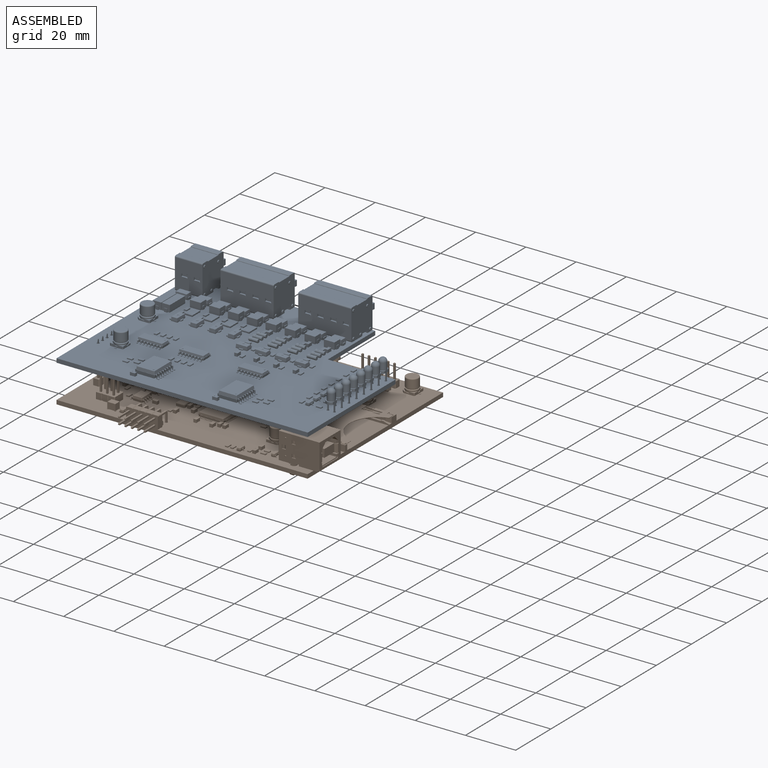
[diagram: assembled view]
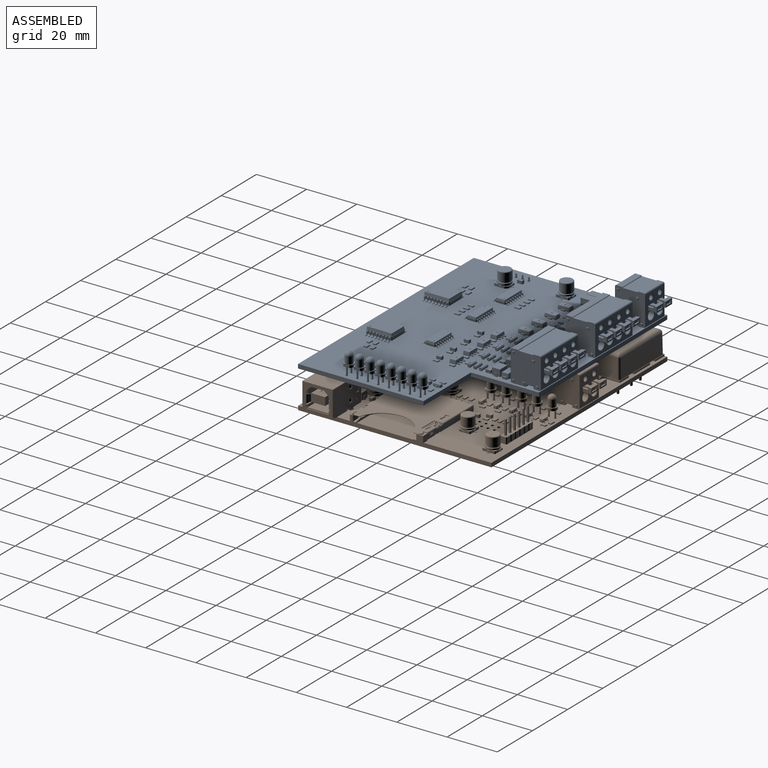
[diagram: assembled view, second angle]
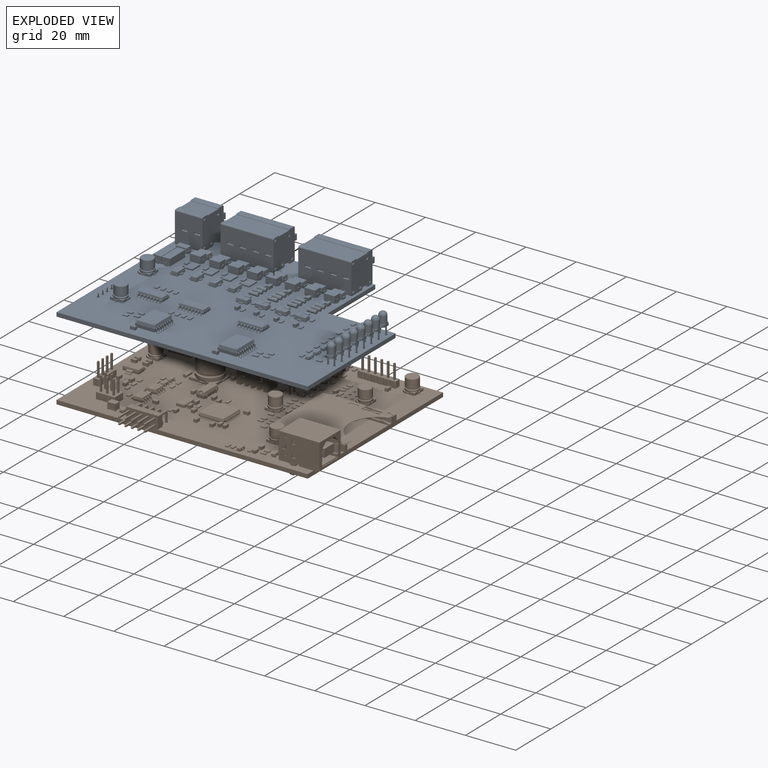
[diagram: exploded view]
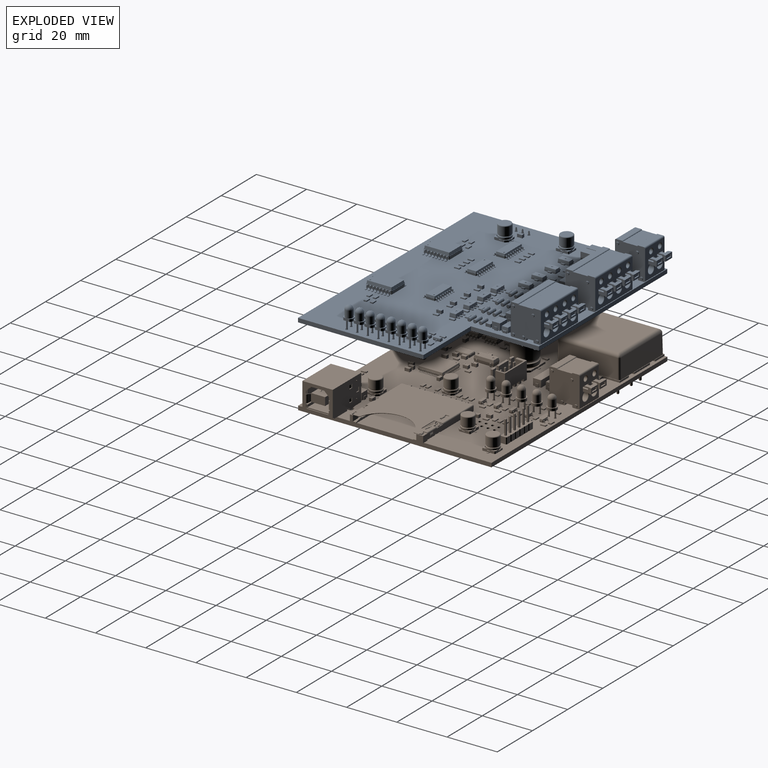
[diagram: exploded view, second angle]
FCSTD DOCUMENT  (FreeCAD 0.20R)
Label: CPU_Case_PiggyBack
License: All rights reserved
LicenseURL: http://en.wikipedia.org/wiki/All_rights_reserved
objects: App::Link×220, Part::Feature×79, Part::Box×37, Part::Cut×23, Part::MultiFuse×21, App::Part×20, Part::FeaturePython×16, Part::Wedge×14, Part::Cylinder×9, Part::Prism×6, PartDesign::CoordinateSystem×2, Sketcher::SketchObject×2, Part::Mirroring×2, Part::MultiCommon×2, Part::Compound×2, Part::Part2DObjectPython×1, Part::Extrusion×1
note: 210 computed .brp shape members not serialized (recipe doc carries the construction recipe); baked Part::Feature solids carry a one-line shape summary decoded from their .brp

FEATURE [PartDesign::CoordinateSystem] Local_CS_b84b
  AttacherType = Attacher::AttachEngine3D
  MapMode = 2
  Support = -> [X_Axis001]
FEATURE [Part::Feature] Pcb_b84b
  Placement = pos=(-89.662,85.09,0) rot=(0,0,1;0rad)
  shape: bbox 100 x 77 x 1.606 mm, 74 faces (baked)
FEATURE [Sketcher::SketchObject] PCB_Sketch_b84b
  FullyConstrained = false
  sketch-geometry (4):
    g0: LineSegment StartX=-6.662 StartY=-54.41 StartZ=0 EndX=93.338 EndY=-54.41 EndZ=0
    g1: LineSegment StartX=-6.662 StartY=22.59 StartZ=0 EndX=-6.662 EndY=-54.41 EndZ=0
    g2: LineSegment StartX=93.338 StartY=-54.41 StartZ=0 EndX=93.338 EndY=22.59 EndZ=0
    g3: LineSegment StartX=93.338 StartY=22.59 StartZ=0 EndX=-6.662 EndY=22.59 EndZ=0
  constraints (4):
    c: Coincident(g0,g1)
    c: Coincident(g1,g3)
    c: Coincident(g0,g2)
    c: Coincident(g2,g3)
FEATURE [App::Part] Board_Geoms_b84b
  Group = -> [Pcb_b84b,PCB_Sketch_b84b]
  Origin = -> Origin
FEATURE [Part::Feature] Shape  label="R12_R_0805_2012Metric_62a81ba76bab"
  Placement = pos=(60.96,-17.272,0) rot=(0,0,1;0rad)
  shape: bbox 2 x 1.2 x 0.45 mm, 26 faces (baked)
FEATURE [Part::Feature] Shape001  label="Q1_SOT_23_2e41d23e40b3"
  Placement = pos=(57.15,18.034,0) rot=(0,0,-1;1.5708rad)
  shape: bbox 3 x 2.5 x 1.2 mm, 76 faces (baked)
FEATURE [Part::Feature] Shape002  label="C25_C_0805_2012Metric_5eca3457088c"
  Placement = pos=(2.032,-16.002,0) rot=(0,0,1;0rad)
  shape: bbox 2 x 1.25 x 1.25 mm, 28 faces (baked)
FEATURE [App::Link] C25_C_0805_2012Metric_5eca3457088c_ln_  label="C5_C_0805_2012Metric_92d505752b23"
  LinkPlacement = pos=(30.734,-39.878,0) rot=(0,0,-1;1.5708rad)
  LinkedObject = -> Shape002
  Placement = pos=(30.734,-39.878,0) rot=(0,0,-1;1.5708rad)
FEATURE [App::Link] Q1_SOT_23_2e41d23e40b3_ln_  label="Q2_SOT_23_19b9e7cd173a"
  LinkPlacement = pos=(57.15,11.938,0) rot=(0,0,-1;1.5708rad)
  LinkedObject = -> Shape001
  Placement = pos=(57.15,11.938,0) rot=(0,0,-1;1.5708rad)
FEATURE [App::Link] R12_R_0805_2012Metric_62a81ba76bab_ln_  label="R47_R_0805_2012Metric_3540308f0a77"
  LinkPlacement = pos=(18.796,-24.826,0) rot=(0,0,-1;1.5708rad)
  LinkedObject = -> Shape
  Placement = pos=(18.796,-24.826,0) rot=(0,0,-1;1.5708rad)
FEATURE [App::Link] C25_C_0805_2012Metric_5eca3457088c_ln_001  label="C27_C_0805_2012Metric_dd5201d8e365"
  LinkPlacement = pos=(15.748,-34.29,0) rot=(0,0,1;0rad)
  LinkedObject = -> Shape002
  Placement = pos=(15.748,-34.29,0) rot=(0,0,1;0rad)
FEATURE [App::Link] R12_R_0805_2012Metric_62a81ba76bab_ln_001  label="R43_R_0805_2012Metric_d8a7ed618cd5"
  LinkPlacement = pos=(65.786,6.858,0) rot=(0,0,1;0rad)
  LinkedObject = -> Shape
  Placement = pos=(65.786,6.858,0) rot=(0,0,1;0rad)
FEATURE [App::Link] R12_R_0805_2012Metric_62a81ba76bab_ln_002  label="R50_R_0805_2012Metric_8492a22e9b5c"
  LinkPlacement = pos=(12.7,-21.336,0) rot=(0,0,1;1.5708rad)
  LinkedObject = -> Shape
  Placement = pos=(12.7,-21.336,0) rot=(0,0,1;1.5708rad)
FEATURE [App::Link] C25_C_0805_2012Metric_5eca3457088c_ln_002  label="C12_C_0805_2012Metric_24dc95506911"
  LinkPlacement = pos=(69.85,-46.99,0) rot=(0,0,1;1.5708rad)
  LinkedObject = -> Shape002
  Placement = pos=(69.85,-46.99,0) rot=(0,0,1;1.5708rad)
FEATURE [App::Link] C25_C_0805_2012Metric_5eca3457088c_ln_003  label="C18_C_0805_2012Metric_c260217dad88"
  LinkPlacement = pos=(40.386,-41.91,0) rot=(0,0,-1;1.5708rad)
  LinkedObject = -> Shape002
  Placement = pos=(40.386,-41.91,0) rot=(0,0,-1;1.5708rad)
FEATURE [App::Link] R12_R_0805_2012Metric_62a81ba76bab_ln_003  label="R20_R_0805_2012Metric_192ced481871"
  LinkPlacement = pos=(60.96,-23.876,0) rot=(0,0,1;0rad)
  LinkedObject = -> Shape
  Placement = pos=(60.96,-23.876,0) rot=(0,0,1;0rad)
FEATURE [App::Link] C25_C_0805_2012Metric_5eca3457088c_ln_004  label="C17_C_0805_2012Metric_2858f0ca72a8"
  LinkPlacement = pos=(48.768,-40.386,0) rot=(0,0,-1;1.5708rad)
  LinkedObject = -> Shape002
  Placement = pos=(48.768,-40.386,0) rot=(0,0,-1;1.5708rad)
FEATURE [Part::Feature] Part__Feature  label="406I35S24M00000"
  shape: bbox 0.4 x 0.02 x 0.4 mm, 4 faces (baked)
FEATURE [Part::Feature] Part__Feature001  label="406I35S24M00001"
  shape: bbox 3.518 x 0.12 x 6.018 mm, 26 faces (baked)
FEATURE [Part::Feature] Part__Feature002  label="406I35S24M00002"
  shape: bbox 3.15 x 0.12 x 5.65 mm, 21 faces (baked)
FEATURE [Part::Feature] Part__Feature003  label="406I35S24M00003"
  shape: bbox 3.5 x 0.96 x 6 mm, 39 faces (baked)
FEATURE [Part::Feature] Part__Feature004  label="406I35S24M00004"
  shape: bbox 1 x 0.48 x 1.4 mm, 12 faces (baked)
FEATURE [Part::Feature] Part__Feature005  label="406I35S24M00005"
  shape: bbox 1 x 0.48 x 1.4 mm, 11 faces (baked)
FEATURE [Part::Feature] Part__Feature006  label="406I35S24M00006"
  shape: bbox 1 x 0.48 x 1.4 mm, 11 faces (baked)
FEATURE [Part::Feature] Part__Feature007  label="406I35S24M00007"
  shape: bbox 1 x 0.48 x 1.4 mm, 11 faces (baked)
FEATURE [App::Part] _06I35S24M00000  label="Y1_406I35S24M00008_0c01424830ea[2]"
  Group = -> [Part__Feature,Part__Feature001,Part__Feature002,Part__Feature003,Part__Feature004,Part__Feature005,Part__Feature006,Part__Feature007]
  Origin = -> Origin008
  Placement = pos=(29.464,-32.766,0) rot=(1,0,0;1.5708rad)
FEATURE [App::Link] R12_R_0805_2012Metric_62a81ba76bab_ln_004  label="R4_R_0805_2012Metric_3cd4b336a0f1"
  LinkPlacement = pos=(57.404,-12.954,0) rot=(0,0,1;0rad)
  LinkedObject = -> Shape
  Placement = pos=(57.404,-12.954,0) rot=(0,0,1;0rad)
FEATURE [App::Link] R12_R_0805_2012Metric_62a81ba76bab_ln_005  label="R19_R_0805_2012Metric_87e62716b58d"
  LinkPlacement = pos=(59.944,7.874,0) rot=(0,0,1;1.5708rad)
  LinkedObject = -> Shape
  Placement = pos=(59.944,7.874,0) rot=(0,0,1;1.5708rad)
FEATURE [App::Link] C25_C_0805_2012Metric_5eca3457088c_ln_005  label="C6_C_0805_2012Metric_d936695559c8"
  LinkPlacement = pos=(46.736,-41.91,0) rot=(0,0,-1;1.5708rad)
  LinkedObject = -> Shape002
  Placement = pos=(46.736,-41.91,0) rot=(0,0,-1;1.5708rad)
FEATURE [App::Link] R12_R_0805_2012Metric_62a81ba76bab_ln_006  label="R32_R_0805_2012Metric_89c7118a92fe"
  LinkPlacement = pos=(59.944,1.778,0) rot=(0,0,1;1.5708rad)
  LinkedObject = -> Shape
  Placement = pos=(59.944,1.778,0) rot=(0,0,1;1.5708rad)
FEATURE [Part::Feature] Shape003  label="U2_THN 10WIR-V00_d61e4a9a75cb"
  Placement = pos=(6.604,9.144,1) rot=(0.57735,0.57735,0.57735;2.0944rad)
  shape: bbox 25.4 x 25.4 x 15.5 mm, 64 faces (baked)
FEATURE [App::Link] R12_R_0805_2012Metric_62a81ba76bab_ln_007  label="R13_R_0805_2012Metric_67d1f7cb70af"
  LinkPlacement = pos=(60.96,-33.02,0) rot=(0,0,1;0rad)
  LinkedObject = -> Shape
  Placement = pos=(60.96,-33.02,0) rot=(0,0,1;0rad)
FEATURE [Part::Feature] Shape004  label="D2_LED_D3.0mm_e0e7c0c5c3eb"
  Placement = pos=(53.086,17.267,0) rot=(0,0,1;1.5708rad)
  shape: bbox 3.8 x 3.4 x 10.8 mm, 16 faces (baked)
FEATURE [App::Link] C25_C_0805_2012Metric_5eca3457088c_ln_006  label="C28_C_0805_2012Metric_f7788f07f273"
  LinkPlacement = pos=(5.334,-28.702,0) rot=(0,0,1;1.5708rad)
  LinkedObject = -> Shape002
  Placement = pos=(5.334,-28.702,0) rot=(0,0,1;1.5708rad)
FEATURE [App::Link] C25_C_0805_2012Metric_5eca3457088c_ln_007  label="C13_C_0805_2012Metric_c7644f50667b"
  LinkPlacement = pos=(35.306,-24.638,0) rot=(0,0,-1;1.5708rad)
  LinkedObject = -> Shape002
  Placement = pos=(35.306,-24.638,0) rot=(0,0,-1;1.5708rad)
FEATURE [Part::Feature] Shape005  label="C3_CP_Elec_10x105_ffc765718781"
  Placement = pos=(24.892,-11.938,0) rot=(0,0,-1;1.5708rad)
  shape: bbox 13.66 x 13.47 x 10.5 mm, 41 faces (baked)
FEATURE [App::Link] C25_C_0805_2012Metric_5eca3457088c_ln_008  label="C23_C_0805_2012Metric_e81fbae5ee9f"
  LinkPlacement = pos=(-2.54,-13.97,0) rot=(0,0,1;3.14159rad)
  LinkedObject = -> Shape002
  Placement = pos=(-2.54,-13.97,0) rot=(0,0,1;3.14159rad)
FEATURE [App::Link] R12_R_0805_2012Metric_62a81ba76bab_ln_008  label="R5_R_0805_2012Metric_3c578dec585e"
  LinkPlacement = pos=(57.404,-15.24,0) rot=(0,0,1;0rad)
  LinkedObject = -> Shape
  Placement = pos=(57.404,-15.24,0) rot=(0,0,1;0rad)
FEATURE [Part::Feature] Part__Feature008  label="SMB-001"
  shape: bbox 4.2 x 3.2 x 2.7 mm, 6 faces (baked)
FEATURE [Part::Feature] Part__Feature009  label="SMB-002"
  shape: bbox 1.35 x 1.2 x 1.35 mm, 6 faces (baked)
FEATURE [Part::Feature] Part__Feature010  label="SMB-003"
  shape: bbox 1.35 x 1.2 x 1.35 mm, 6 faces (baked)
FEATURE [App::Part] SMB_001  label="FB1_SMB-004_341512a4c7b9"
  Group = -> [Part__Feature008,Part__Feature009,Part__Feature010]
  Origin = -> Origin009
  Placement = pos=(75.362,-39.402,0) rot=(0,0,-1;1.5708rad)
FEATURE [App::Link] R12_R_0805_2012Metric_62a81ba76bab_ln_009  label="R38_R_0805_2012Metric_a3d48280336d"
  LinkPlacement = pos=(57.15,-3.302,0) rot=(0,0,1;0rad)
  LinkedObject = -> Shape
  Placement = pos=(57.15,-3.302,0) rot=(0,0,1;0rad)
FEATURE [App::Link] C25_C_0805_2012Metric_5eca3457088c_ln_009  label="C35_C_0805_2012Metric_5f73a51b56ea"
  LinkPlacement = pos=(0.614,-29.21,0) rot=(0,0,1;1.5708rad)
  LinkedObject = -> Shape002
  Placement = pos=(0.614,-29.21,0) rot=(0,0,1;1.5708rad)
FEATURE [App::Link] D2_LED_D3_0mm_e0e7c0c5c3eb_ln_  label="D6_LED_D3.0mm_f2a13bf7c563"
  LinkPlacement = pos=(53.086,-7.117,0) rot=(0,0,1;1.5708rad)
  LinkedObject = -> Shape004
  Placement = pos=(53.086,-7.117,0) rot=(0,0,1;1.5708rad)
FEATURE [App::Link] R12_R_0805_2012Metric_62a81ba76bab_ln_010  label="R8_R_0805_2012Metric_d0be71203c34"
  LinkPlacement = pos=(57.404,-29.718,0) rot=(0,0,1;0rad)
  LinkedObject = -> Shape
  Placement = pos=(57.404,-29.718,0) rot=(0,0,1;0rad)
FEATURE [App::Link] C25_C_0805_2012Metric_5eca3457088c_ln_010  label="C22_C_0805_2012Metric_d7eb83d4c5c5"
  LinkPlacement = pos=(5.334,-32.258,0) rot=(0,0,1;1.5708rad)
  LinkedObject = -> Shape002
  Placement = pos=(5.334,-32.258,0) rot=(0,0,1;1.5708rad)
FEATURE [App::Link] C25_C_0805_2012Metric_5eca3457088c_ln_011  label="C8_C_0805_2012Metric_24c231985d7f"
  LinkPlacement = pos=(32.512,-34.29,0) rot=(0,0,1;1.5708rad)
  LinkedObject = -> Shape002
  Placement = pos=(32.512,-34.29,0) rot=(0,0,1;1.5708rad)
FEATURE [Part::Feature] Shape006  label="U3_SOT_223_43efb2375e3f"
  Placement = pos=(1.016,-21.59,0) rot=(0,0,-1;1.5708rad)
  shape: bbox 6.5 x 7 x 1.7 mm, 78 faces (baked)
FEATURE [Part::Feature] Shape007  label="C10_CP_Elec_5x58_555f027a7b52"
  Placement = pos=(70.612,-39.37,0) rot=(0,0,1;3.14159rad)
  shape: bbox 6.985 x 6.828 x 5.8 mm, 41 faces (baked)
FEATURE [App::Link] R12_R_0805_2012Metric_62a81ba76bab_ln_011  label="R31_R_0805_2012Metric_b122789427ef"
  LinkPlacement = pos=(59.69,-51.562,0) rot=(0,0,1;1.5708rad)
  LinkedObject = -> Shape
  Placement = pos=(59.69,-51.562,0) rot=(0,0,1;1.5708rad)
FEATURE [Part::Feature] Shape008  label="J6_PinHeader_2x03_P254mm_Vertical_fc751aefeaa9"
  Placement = pos=(4.587,-45.217,0) rot=(0,0,1;1.5708rad)
  shape: bbox 7.62 x 5.08 x 11.54 mm, 130 faces (baked)
FEATURE [Part::Feature] Shape009  label="U4_SOIC_8_39x49mm_P127mm_e9a9a6f8778b"
  Placement = pos=(15.748,-30.48,0) rot=(0,0,1;3.14159rad)
  shape: bbox 6 x 4.9 x 1.75 mm, 156 faces (baked)
FEATURE [App::Link] R12_R_0805_2012Metric_62a81ba76bab_ln_012  label="R27_R_0805_2012Metric_ea6ce39ee0e4"
  LinkPlacement = pos=(34.544,-32.512,0) rot=(0,0,-1;1.5708rad)
  LinkedObject = -> Shape
  Placement = pos=(34.544,-32.512,0) rot=(0,0,-1;1.5708rad)
FEATURE [App::Link] Q1_SOT_23_2e41d23e40b3_ln_001  label="Q5_SOT_23_2ee7d8869737"
  LinkPlacement = pos=(57.15,-0.254,0) rot=(0,0,-1;1.5708rad)
  LinkedObject = -> Shape001
  Placement = pos=(57.15,-0.254,0) rot=(0,0,-1;1.5708rad)
FEATURE [App::Link] Q1_SOT_23_2e41d23e40b3_ln_002  label="Q3_SOT_23_d0a27363ebb8"
  LinkPlacement = pos=(57.15,5.842,0) rot=(0,0,-1;1.5708rad)
  LinkedObject = -> Shape001
  Placement = pos=(57.15,5.842,0) rot=(0,0,-1;1.5708rad)
FEATURE [App::Link] C10_CP_Elec_5x58_555f027a7b52_ln_  label="C32_CP_Elec_5x58_de358fd88650"
  LinkPlacement = pos=(76.962,1.778,0) rot=(0,0,1;1.5708rad)
  LinkedObject = -> Shape007
  Placement = pos=(76.962,1.778,0) rot=(0,0,1;1.5708rad)
FEATURE [App::Link] R12_R_0805_2012Metric_62a81ba76bab_ln_013  label="R44_R_0805_2012Metric_86c14beff862"
  LinkPlacement = pos=(65.786,4.826,0) rot=(0,0,1;0rad)
  LinkedObject = -> Shape
  Placement = pos=(65.786,4.826,0) rot=(0,0,1;0rad)
FEATURE [App::Link] C25_C_0805_2012Metric_5eca3457088c_ln_012  label="C9_C_0805_2012Metric_530a3bd97ff1"
  LinkPlacement = pos=(76.2,-36.83,0) rot=(0,0,1;3.14159rad)
  LinkedObject = -> Shape002
  Placement = pos=(76.2,-36.83,0) rot=(0,0,1;3.14159rad)
FEATURE [App::Link] C25_C_0805_2012Metric_5eca3457088c_ln_013  label="C4_C_0805_2012Metric_94d348c3ed06"
  LinkPlacement = pos=(31.75,-8.636,0) rot=(0,0,-1;1.5708rad)
  LinkedObject = -> Shape002
  Placement = pos=(31.75,-8.636,0) rot=(0,0,-1;1.5708rad)
FEATURE [Part::Feature] Shape010  label="D9_D_SMA_8d881dea6a71"
  Placement = pos=(24.892,3.81,0) rot=(0,0,1;1.5708rad)
  shape: bbox 2.7 x 5 x 2.22 mm, 41 faces (baked)
FEATURE [Part::Feature] Part__Feature011  label="MC-306 40.0000K-P_ PURE SN"
  shape: bbox 0.9 x 1.425 x 0.5 mm, 12 faces (baked)
FEATURE [Part::Feature] Part__Feature012  label="MC-306 40.0000K-P_ PURE SN001"
  shape: bbox 0.9 x 1.425 x 0.5 mm, 12 faces (baked)
FEATURE [Part::Feature] Part__Feature013  label="MC-306 40.0000K-P_ PURE SN002"
  shape: bbox 0.9 x 1.425 x 0.5 mm, 12 faces (baked)
FEATURE [Part::Feature] Part__Feature014  label="MC-306 40.0000K-P_ PURE SN003"
  shape: bbox 0.9 x 1.425 x 0.5 mm, 12 faces (baked)
FEATURE [Part::Feature] Part__Feature015  label="MC-306 40.0000K-P_ PURE SN004"
  shape: bbox 3.3 x 2.38 x 8 mm, 23 faces (baked)
FEATURE [App::Part] MC_306_40_0000K_P__PURE_SN  label="Y2_MC-306 40.0000K-P_ PURE SN005_738b1979f88c[2]"
  Group = -> [Part__Feature011,Part__Feature012,Part__Feature013,Part__Feature014,Part__Feature015]
  Origin = -> Origin010
  Placement = pos=(31.242,-22.86,0) rot=(0,0.707107,0.707107;3.14159rad)
FEATURE [App::Link] R12_R_0805_2012Metric_62a81ba76bab_ln_014  label="R33_R_0805_2012Metric_7270a00a4abf"
  LinkPlacement = pos=(59.944,-4.318,0) rot=(0,0,1;1.5708rad)
  LinkedObject = -> Shape
  Placement = pos=(59.944,-4.318,0) rot=(0,0,1;1.5708rad)
FEATURE [Part::Feature] Part__Feature016  label="USB-B-S-TH_P"
  shape: bbox 3.5 x 10.91 x 13.96 mm, 86 faces (baked)
FEATURE [Part::Feature] Part__Feature017  label="USB-B-S-B-TH_B"
  shape: bbox 11.8 x 10.4 x 15.6 mm, 89 faces (baked)
FEATURE [Part::Feature] Part__Feature018  label="USB-B-S-TH_S"
  shape: bbox 14.5 x 14.44 x 16.5 mm, 162 faces (baked)
FEATURE [App::Part] USB_B_S_F_B_TH  label="J3_USB-B-S-F-B-TH_6d1fc8120d94[2]"
  Group = -> [Part__Feature016,Part__Feature017,Part__Feature018]
  Origin = -> Origin011
  Placement = pos=(87.5885,-45.008,0) rot=(0.57735,0.57735,0.57735;2.0944rad)
FEATURE [App::Link] Q1_SOT_23_2e41d23e40b3_ln_003  label="D7_SOT_23_5724a08ac20b"
  LinkPlacement = pos=(76.454,-48.768,0) rot=(0,0,1;3.14159rad)
  LinkedObject = -> Shape001
  Placement = pos=(76.454,-48.768,0) rot=(0,0,1;3.14159rad)
FEATURE [App::Link] R12_R_0805_2012Metric_62a81ba76bab_ln_015  label="R15_R_0805_2012Metric_7a0c75337f96"
  LinkPlacement = pos=(60.96,-12.954,0) rot=(0,0,1;0rad)
  LinkedObject = -> Shape
  Placement = pos=(60.96,-12.954,0) rot=(0,0,1;0rad)
FEATURE [App::Link] C25_C_0805_2012Metric_5eca3457088c_ln_014  label="C24_C_0805_2012Metric_672dc5fa86b8"
  LinkPlacement = pos=(-2.54,-16.002,0) rot=(0,0,1;3.14159rad)
  LinkedObject = -> Shape002
  Placement = pos=(-2.54,-16.002,0) rot=(0,0,1;3.14159rad)
FEATURE [App::Link] R12_R_0805_2012Metric_62a81ba76bab_ln_016  label="R24_R_0805_2012Metric_6c5557fb68fa"
  LinkPlacement = pos=(60.96,-27.686,0) rot=(0,0,1;0rad)
  LinkedObject = -> Shape
  Placement = pos=(60.96,-27.686,0) rot=(0,0,1;0rad)
FEATURE [App::Link] R12_R_0805_2012Metric_62a81ba76bab_ln_017  label="R45_R_0805_2012Metric_c9e6379cee92"
  LinkPlacement = pos=(65.786,8.89,0) rot=(0,0,1;0rad)
  LinkedObject = -> Shape
  Placement = pos=(65.786,8.89,0) rot=(0,0,1;0rad)
FEATURE [App::Link] R12_R_0805_2012Metric_62a81ba76bab_ln_018  label="R40_R_0805_2012Metric_a218ea3692a0"
  LinkPlacement = pos=(7.366,-30.48,0) rot=(0,0,1;1.5708rad)
  LinkedObject = -> Shape
  Placement = pos=(7.366,-30.48,0) rot=(0,0,1;1.5708rad)
FEATURE [Part::Feature] Part__Feature019  label="SMB-004"
  shape: bbox 8.75 x 3.2 x 2.7 mm, 6 faces (baked)
FEATURE [Part::Feature] Part__Feature020  label="SMB-005"
  shape: bbox 1.3 x 1.2 x 1.35 mm, 6 faces (baked)
FEATURE [Part::Feature] Part__Feature021  label="SMB-006"
  shape: bbox 1.3 x 1.2 x 1.35 mm, 6 faces (baked)
FEATURE [App::Part] SMB_002  label="FB2_SMB-007_9431605ef1ec"
  Group = -> [Part__Feature019,Part__Feature020,Part__Feature021]
  Origin = -> Origin012
  Placement = pos=(28.212,4.75,0) rot=(0,0,1;0rad)
FEATURE [Part::Feature] Shape011  label="D1_D_MiniMELF_Standard_b10ca080aaf8"
  Placement = pos=(17.78,-14.76,0) rot=(0,0,-1;1.5708rad)
  shape: bbox 1.4 x 3.6 x 1.4 mm, 13 faces (baked)
FEATURE [Part::Feature] Shape012  label="J8_PinHeader_1x04_P254mm_Vertical_5613facc71d8"
  Placement = pos=(-2.286,-29.33,0) rot=(0,0,1;0rad)
  shape: bbox 2.54 x 10.16 x 11.54 mm, 100 faces (baked)
FEATURE [App::Link] R12_R_0805_2012Metric_62a81ba76bab_ln_019  label="R25_R_0805_2012Metric_b3c0b00f42c8"
  LinkPlacement = pos=(40.259,-23.876,0) rot=(0,0,-1;1.5708rad)
  LinkedObject = -> Shape
  Placement = pos=(40.259,-23.876,0) rot=(0,0,-1;1.5708rad)
FEATURE [App::Link] C10_CP_Elec_5x58_555f027a7b52_ln_001  label="C21_CP_Elec_5x58_65a8e8484c9a"
  LinkPlacement = pos=(1.016,-8.89,0) rot=(0,0,1;0rad)
  LinkedObject = -> Shape007
  Placement = pos=(1.016,-8.89,0) rot=(0,0,1;0rad)
FEATURE [App::Link] C10_CP_Elec_5x58_555f027a7b52_ln_002  label="C30_CP_Elec_5x58_08a5c7705234"
  LinkPlacement = pos=(84.836,17.272,0) rot=(0,0,1;0rad)
  LinkedObject = -> Shape007
  Placement = pos=(84.836,17.272,0) rot=(0,0,1;0rad)
FEATURE [App::Link] R12_R_0805_2012Metric_62a81ba76bab_ln_020  label="R46_R_0805_2012Metric_bb641a1987bd"
  LinkPlacement = pos=(10.922,-38.1,0) rot=(0,0,1;1.5708rad)
  LinkedObject = -> Shape
  Placement = pos=(10.922,-38.1,0) rot=(0,0,1;1.5708rad)
FEATURE [App::Link] R12_R_0805_2012Metric_62a81ba76bab_ln_021  label="R3_R_0805_2012Metric_e1aa42cc5bc9"
  LinkPlacement = pos=(57.404,-10.414,0) rot=(0,0,1;0rad)
  LinkedObject = -> Shape
  Placement = pos=(57.404,-10.414,0) rot=(0,0,1;0rad)
FEATURE [App::Link] FB2_SMB_007_9431605ef1ec_ln_  label="FB3_SMB-007_38310fc80f70"
  LinkPlacement = pos=(28.212,-0.33,0) rot=(0,0,1;0rad)
  LinkedObject = -> SMB_002
  Placement = pos=(28.212,-0.33,0) rot=(0,0,1;0rad)
FEATURE [Part::Feature] Part__Feature022  label="Body"
  Placement = pos=(0,0,0.1) rot=(0,0,1;0rad)
  shape: bbox 3.2 x 2.5 x 2.5 mm, 6 faces (baked)
FEATURE [Part::Feature] Part__Feature023  label="Pins"
  shape: bbox 0.52 x 0.67 x 0.1 mm, 6 faces (baked)
FEATURE [Part::Feature] Part__Feature024  label="Pins001"
  shape: bbox 0.52 x 0.67 x 0.1 mm, 6 faces (baked)
FEATURE [Part::Feature] Part__Feature025  label="Pins002"
  shape: bbox 0.52 x 0.67 x 0.1 mm, 6 faces (baked)
FEATURE [Part::Feature] Part__Feature026  label="Pins003"
  shape: bbox 0.52 x 0.67 x 0.1 mm, 6 faces (baked)
FEATURE [App::Part] Pins  label="Pins004"
  Group = -> [Part__Feature023,Part__Feature024,Part__Feature025,Part__Feature026]
  Origin = -> Origin013
FEATURE [App::Part] ASSEMBLY  label="L1_ASSEMBLY_9415cedf178b"
  Group = -> [Part__Feature022,Pins]
  Origin = -> Origin014
  Placement = pos=(12.521,-49.405,0) rot=(0,0,1;0rad)
FEATURE [App::Link] R12_R_0805_2012Metric_62a81ba76bab_ln_022  label="R34_R_0805_2012Metric_5cc3aa8b4a58"
  LinkPlacement = pos=(67.818,-50.546,0) rot=(0,0,-1;1.5708rad)
  LinkedObject = -> Shape
  Placement = pos=(67.818,-50.546,0) rot=(0,0,-1;1.5708rad)
FEATURE [App::Link] R12_R_0805_2012Metric_62a81ba76bab_ln_023  label="R28_R_0805_2012Metric_e66e29c26716"
  LinkPlacement = pos=(61.722,-51.562,0) rot=(0,0,-1;1.5708rad)
  LinkedObject = -> Shape
  Placement = pos=(61.722,-51.562,0) rot=(0,0,-1;1.5708rad)
FEATURE [App::Link] R12_R_0805_2012Metric_62a81ba76bab_ln_024  label="R29_R_0805_2012Metric_8c827952f126"
  LinkPlacement = pos=(49.784,0.254,0) rot=(0,0,1;1.5708rad)
  LinkedObject = -> Shape
  Placement = pos=(49.784,0.254,0) rot=(0,0,1;1.5708rad)
FEATURE [Part::Feature] Shape013  label="J2_JST_B4B_XH_A_40c82bb08383"
  Placement = pos=(44.136,-8.145,0) rot=(0,0,1;3.14159rad)
  shape: bbox 12.4 x 5.75 x 10.4 mm, 141 faces (baked)
FEATURE [App::Link] R12_R_0805_2012Metric_62a81ba76bab_ln_025  label="R1_R_0805_2012Metric_1a0b76880183"
  LinkPlacement = pos=(17.78,-8.636,0) rot=(0,0,1;1.5708rad)
  LinkedObject = -> Shape
  Placement = pos=(17.78,-8.636,0) rot=(0,0,1;1.5708rad)
FEATURE [App::Link] U4_SOIC_8_39x49mm_P127mm_e9a9a6f8778b_ln_  label="U5_SOIC_8_39x49mm_P127mm_71c03859b535"
  LinkPlacement = pos=(15.748,-38.1,0) rot=(0,0,1;3.14159rad)
  LinkedObject = -> Shape009
  Placement = pos=(15.748,-38.1,0) rot=(0,0,1;3.14159rad)
FEATURE [App::Link] R12_R_0805_2012Metric_62a81ba76bab_ln_026  label="R21_R_0805_2012Metric_56fd3b4189c5"
  LinkPlacement = pos=(57.15,21.082,0) rot=(0,0,1;0rad)
  LinkedObject = -> Shape
  Placement = pos=(57.15,21.082,0) rot=(0,0,1;0rad)
FEATURE [App::Link] R12_R_0805_2012Metric_62a81ba76bab_ln_027  label="R2_R_0805_2012Metric_4dee73d56389"
  LinkPlacement = pos=(28.702,-39.878,0) rot=(0,0,1;1.5708rad)
  LinkedObject = -> Shape
  Placement = pos=(28.702,-39.878,0) rot=(0,0,1;1.5708rad)
FEATURE [App::Link] C25_C_0805_2012Metric_5eca3457088c_ln_015  label="C7_C_0805_2012Metric_da12b3cb076c"
  LinkPlacement = pos=(32.512,-30.734,0) rot=(0,0,-1;1.5708rad)
  LinkedObject = -> Shape002
  Placement = pos=(32.512,-30.734,0) rot=(0,0,-1;1.5708rad)
FEATURE [App::Link] C25_C_0805_2012Metric_5eca3457088c_ln_016  label="C26_C_0805_2012Metric_d8efb5078880"
  LinkPlacement = pos=(2.032,-13.97,0) rot=(0,0,1;0rad)
  LinkedObject = -> Shape002
  Placement = pos=(2.032,-13.97,0) rot=(0,0,1;0rad)
FEATURE [Part::Feature] Shape014  label="J5_PinHeader_2x05_P254mm_Horizontal_10b986e424d2"
  Placement = pos=(32.498,-47.91,0) rot=(0,0,-1;1.5708rad)
  shape: bbox 12.7 x 12.9 x 8.08 mm, 244 faces (baked)
FEATURE [App::Link] R12_R_0805_2012Metric_62a81ba76bab_ln_028  label="R26_R_0805_2012Metric_c4381b03aa4b"
  LinkPlacement = pos=(60.96,-29.718,0) rot=(0,0,1;0rad)
  LinkedObject = -> Shape
  Placement = pos=(60.96,-29.718,0) rot=(0,0,1;0rad)
FEATURE [App::Link] Q1_SOT_23_2e41d23e40b3_ln_004  label="D10_SOT_23_28d1629d84fb"
  LinkPlacement = pos=(16.6243,-49.276,0) rot=(0,0,1;0rad)
  LinkedObject = -> Shape001
  Placement = pos=(16.6243,-49.276,0) rot=(0,0,1;0rad)
FEATURE [App::Link] D2_LED_D3_0mm_e0e7c0c5c3eb_ln_001  label="D3_LED_D3.0mm_ed4773b82dab"
  LinkPlacement = pos=(53.086,11.176,0) rot=(0,0,1;1.5708rad)
  LinkedObject = -> Shape004
  Placement = pos=(53.086,11.176,0) rot=(0,0,1;1.5708rad)
FEATURE [App::Link] C25_C_0805_2012Metric_5eca3457088c_ln_017  label="C11_C_0805_2012Metric_e2688fccb49b"
  LinkPlacement = pos=(69.85,-50.546,0) rot=(0,0,-1;1.5708rad)
  LinkedObject = -> Shape002
  Placement = pos=(69.85,-50.546,0) rot=(0,0,-1;1.5708rad)
FEATURE [App::Link] R12_R_0805_2012Metric_62a81ba76bab_ln_029  label="R35_R_0805_2012Metric_24ae09eae99e"
  LinkPlacement = pos=(72.644,-49.784,0) rot=(0,0,1;3.14159rad)
  LinkedObject = -> Shape
  Placement = pos=(72.644,-49.784,0) rot=(0,0,1;3.14159rad)
FEATURE [App::Link] R12_R_0805_2012Metric_62a81ba76bab_ln_030  label="R7_R_0805_2012Metric_b90613250617"
  LinkPlacement = pos=(57.404,-27.686,0) rot=(0,0,1;0rad)
  LinkedObject = -> Shape
  Placement = pos=(57.404,-27.686,0) rot=(0,0,1;0rad)
FEATURE [App::Link] R12_R_0805_2012Metric_62a81ba76bab_ln_031  label="R30_R_0805_2012Metric_d78c64db7356"
  LinkPlacement = pos=(49.784,-5.842,0) rot=(0,0,1;1.5708rad)
  LinkedObject = -> Shape
  Placement = pos=(49.784,-5.842,0) rot=(0,0,1;1.5708rad)
FEATURE [Part::Feature] Shape015  label="J1_GSD09002SEU_8c18b7f7ebf5"
  Placement = pos=(79.2665,-19.419,0) rot=(0,0,1;1.5708rad)
  shape: bbox 30.08 x 29.22 x 3.37 mm, 1444 faces (baked)
FEATURE [App::Link] R12_R_0805_2012Metric_62a81ba76bab_ln_032  label="R16_R_0805_2012Metric_4c8924f020c1"
  LinkPlacement = pos=(60.96,-15.24,0) rot=(0,0,1;0rad)
  LinkedObject = -> Shape
  Placement = pos=(60.96,-15.24,0) rot=(0,0,1;0rad)
FEATURE [Part::Feature] Shape016  label="J7_PinHeader_1x06_P254mm_Vertical_7a4ebe2ceb7c"
  Placement = pos=(77.724,17.272,0) rot=(0,0,-1;1.5708rad)
  shape: bbox 15.24 x 2.54 x 11.54 mm, 148 faces (baked)
FEATURE [App::Link] Q1_SOT_23_2e41d23e40b3_ln_005  label="Q8_SOT_23_148bb0fba283"
  LinkPlacement = pos=(15.748,-21.336,0) rot=(0,0,1;3.14159rad)
  LinkedObject = -> Shape001
  Placement = pos=(15.748,-21.336,0) rot=(0,0,1;3.14159rad)
FEATURE [App::Link] C25_C_0805_2012Metric_5eca3457088c_ln_018  label="C16_C_0805_2012Metric_ff5c41e094ab"
  LinkPlacement = pos=(50.546,-27.94,0) rot=(0,0,1;0rad)
  LinkedObject = -> Shape002
  Placement = pos=(50.546,-27.94,0) rot=(0,0,1;0rad)
FEATURE [App::Link] D2_LED_D3_0mm_e0e7c0c5c3eb_ln_002  label="D5_LED_D3.0mm_5361f56fd7d8"
  LinkPlacement = pos=(53.086,-1.021,0) rot=(0,0,1;1.5708rad)
  LinkedObject = -> Shape004
  Placement = pos=(53.086,-1.021,0) rot=(0,0,1;1.5708rad)
FEATURE [App::Link] R12_R_0805_2012Metric_62a81ba76bab_ln_033  label="R14_R_0805_2012Metric_2286aa5d2b58"
  LinkPlacement = pos=(60.96,-10.414,0) rot=(0,0,1;0rad)
  LinkedObject = -> Shape
  Placement = pos=(60.96,-10.414,0) rot=(0,0,1;0rad)
FEATURE [App::Link] R12_R_0805_2012Metric_62a81ba76bab_ln_034  label="R36_R_0805_2012Metric_f232b7383081"
  LinkPlacement = pos=(72.644,-47.752,0) rot=(0,0,1;3.14159rad)
  LinkedObject = -> Shape
  Placement = pos=(72.644,-47.752,0) rot=(0,0,1;3.14159rad)
FEATURE [App::Link] R12_R_0805_2012Metric_62a81ba76bab_ln_035  label="R11_R_0805_2012Metric_94fd45dbb38f"
  LinkPlacement = pos=(49.784,6.35,0) rot=(0,0,1;1.5708rad)
  LinkedObject = -> Shape
  Placement = pos=(49.784,6.35,0) rot=(0,0,1;1.5708rad)
FEATURE [App::Link] C25_C_0805_2012Metric_5eca3457088c_ln_019  label="C29_C_0805_2012Metric_241e60a5db4b"
  LinkPlacement = pos=(77.724,13.462,0) rot=(0,0,-1;1.5708rad)
  LinkedObject = -> Shape002
  Placement = pos=(77.724,13.462,0) rot=(0,0,-1;1.5708rad)
FEATURE [Part::Feature] Shape017  label="D8_D_MELF_Standard_3bf185943545"
  Placement = pos=(22.098,13.716,0) rot=(0,0,1;1.5708rad)
  shape: bbox 2.2 x 5.8 x 2.2 mm, 13 faces (baked)
FEATURE [App::Link] C10_CP_Elec_5x58_555f027a7b52_ln_003  label="C2_CP_Elec_5x58_9abf5cedc2ce"
  LinkPlacement = pos=(56.134,-19.558,0) rot=(0,0,1;3.14159rad)
  LinkedObject = -> Shape007
  Placement = pos=(56.134,-19.558,0) rot=(0,0,1;3.14159rad)
FEATURE [App::Link] R12_R_0805_2012Metric_62a81ba76bab_ln_036  label="R18_R_0805_2012Metric_6a9fa8bc916b"
  LinkPlacement = pos=(59.944,13.97,0) rot=(0,0,1;1.5708rad)
  LinkedObject = -> Shape
  Placement = pos=(59.944,13.97,0) rot=(0,0,1;1.5708rad)
FEATURE [App::Link] Q1_SOT_23_2e41d23e40b3_ln_006  label="Q7_SOT_23_801910930c85"
  LinkPlacement = pos=(15.748,-24.826,0) rot=(0,0,1;3.14159rad)
  LinkedObject = -> Shape001
  Placement = pos=(15.748,-24.826,0) rot=(0,0,1;3.14159rad)
FEATURE [App::Link] R12_R_0805_2012Metric_62a81ba76bab_ln_037  label="R23_R_0805_2012Metric_692f6df88cdd"
  LinkPlacement = pos=(57.15,8.89,0) rot=(0,0,1;0rad)
  LinkedObject = -> Shape
  Placement = pos=(57.15,8.89,0) rot=(0,0,1;0rad)
FEATURE [App::Link] R12_R_0805_2012Metric_62a81ba76bab_ln_038  label="R37_R_0805_2012Metric_08c8823a7a40"
  LinkPlacement = pos=(57.15,2.794,0) rot=(0,0,1;0rad)
  LinkedObject = -> Shape
  Placement = pos=(57.15,2.794,0) rot=(0,0,1;0rad)
FEATURE [App::Link] R12_R_0805_2012Metric_62a81ba76bab_ln_039  label="R22_R_0805_2012Metric_e317902e8c98"
  LinkPlacement = pos=(57.15,14.986,0) rot=(0,0,1;0rad)
  LinkedObject = -> Shape
  Placement = pos=(57.15,14.986,0) rot=(0,0,1;0rad)
FEATURE [App::Link] C25_C_0805_2012Metric_5eca3457088c_ln_020  label="C20_C_0805_2012Metric_1779194df4e6"
  LinkPlacement = pos=(50.8,-40.386,0) rot=(0,0,-1;1.5708rad)
  LinkedObject = -> Shape002
  Placement = pos=(50.8,-40.386,0) rot=(0,0,-1;1.5708rad)
FEATURE [App::Link] Q1_SOT_23_2e41d23e40b3_ln_007  label="Q4_SOT_23_34ab7f278529"
  LinkPlacement = pos=(64.77,-51.562,0) rot=(0,0,1;0rad)
  LinkedObject = -> Shape001
  Placement = pos=(64.77,-51.562,0) rot=(0,0,1;0rad)
FEATURE [App::Link] R12_R_0805_2012Metric_62a81ba76bab_ln_040  label="R49_R_0805_2012Metric_b27060b39cc0"
  LinkPlacement = pos=(18.796,-21.336,0) rot=(0,0,-1;1.5708rad)
  LinkedObject = -> Shape
  Placement = pos=(18.796,-21.336,0) rot=(0,0,-1;1.5708rad)
FEATURE [App::Link] R12_R_0805_2012Metric_62a81ba76bab_ln_041  label="R17_R_0805_2012Metric_97c82b761fed"
  LinkPlacement = pos=(59.944,20.066,0) rot=(0,0,1;1.5708rad)
  LinkedObject = -> Shape
  Placement = pos=(59.944,20.066,0) rot=(0,0,1;1.5708rad)
FEATURE [Part::Feature] Shape018  label="U1_LQFP_64_10x10mm_P05mm_8e9dd1613b68"
  Placement = pos=(43.434,-33.274,0) rot=(0,0,1;0rad)
  shape: bbox 12 x 12 x 1.5 mm, 1004 faces (baked)
FEATURE [App::Link] C25_C_0805_2012Metric_5eca3457088c_ln_021  label="C14_C_0805_2012Metric_ecd0b8de2dd7"
  LinkPlacement = pos=(27.178,-24.638,0) rot=(0,0,-1;1.5708rad)
  LinkedObject = -> Shape002
  Placement = pos=(27.178,-24.638,0) rot=(0,0,-1;1.5708rad)
FEATURE [App::Link] Q1_SOT_23_2e41d23e40b3_ln_008  label="Q6_SOT_23_d9d427f14b5c"
  LinkPlacement = pos=(57.15,-6.35,0) rot=(0,0,-1;1.5708rad)
  LinkedObject = -> Shape001
  Placement = pos=(57.15,-6.35,0) rot=(0,0,-1;1.5708rad)
FEATURE [App::Link] R12_R_0805_2012Metric_62a81ba76bab_ln_042  label="R9_R_0805_2012Metric_32aa209d4d05"
  LinkPlacement = pos=(49.784,18.542,0) rot=(0,0,1;1.5708rad)
  LinkedObject = -> Shape
  Placement = pos=(49.784,18.542,0) rot=(0,0,1;1.5708rad)
FEATURE [App::Link] R12_R_0805_2012Metric_62a81ba76bab_ln_043  label="R41_R_0805_2012Metric_3300238fc6d2"
  LinkPlacement = pos=(7.366,-26.924,0) rot=(0,0,1;1.5708rad)
  LinkedObject = -> Shape
  Placement = pos=(7.366,-26.924,0) rot=(0,0,1;1.5708rad)
FEATURE [Part::Feature] Part__Feature027  label="TBL009-500 - END CAP_Blue"
  Placement = pos=(3.5,12.5,7e-16) rot=(0.57735,-0.57735,-0.57735;2.0944rad)
  shape: bbox 1.3 x 12.5 x 12 mm, 72 faces (baked)
FEATURE [Part::Feature] Part__Feature028  label="TBL009-500 - BODY_Blue"
  Placement = pos=(3.5,12.5,9e-16) rot=(0.57735,-0.57735,-0.57735;2.0944rad)
  shape: bbox 5 x 16.5 x 12 mm, 164 faces (baked)
FEATURE [Part::Feature] Part__Feature029  label="TBL009-500 - PUSH BUTTON_Blue"
  Placement = pos=(3.5,12.5,-3e-16) rot=(-0.57735,0.57735,0.57735;4.18879rad)
  shape: bbox 3.75 x 2.2 x 6.25 mm, 21 faces (baked)
FEATURE [Part::Feature] Part__Feature030  label="TBL009-500 - PUSH BUTTON_Blue001"
  Placement = pos=(8.5,12.5,9e-16) rot=(-0.57735,0.57735,0.57735;4.18879rad)
  shape: bbox 3.75 x 2.2 x 6.25 mm, 21 faces (baked)
FEATURE [Part::Feature] Part__Feature031  label="TBL009-500 - BODY_Blue001"
  Placement = pos=(8.5,12.5,2.1e-15) rot=(0.57735,-0.57735,-0.57735;2.0944rad)
  shape: bbox 5 x 16.5 x 12 mm, 164 faces (baked)
FEATURE [App::Part] CUI_DEVICES_TBL009_500_02BE_2BE  label="J4_CUI_DEVICES_TBL009-500-02BE-2BE_3874b0982538"
  Group = -> [Part__Feature027,Part__Feature028,Part__Feature029,Part__Feature030,Part__Feature031]
  Origin = -> Origin015
  Placement = pos=(43.306,10.638,0) rot=(0,0.707107,0.707107;3.14159rad)
FEATURE [App::Link] R12_R_0805_2012Metric_62a81ba76bab_ln_044  label="R39_R_0805_2012Metric_9411ef8c13a8"
  LinkPlacement = pos=(7.366,-34.036,0) rot=(0,0,1;1.5708rad)
  LinkedObject = -> Shape
  Placement = pos=(7.366,-34.036,0) rot=(0,0,1;1.5708rad)
FEATURE [App::Link] R12_R_0805_2012Metric_62a81ba76bab_ln_045  label="R6_R_0805_2012Metric_1b6f2ae07111"
  LinkPlacement = pos=(57.404,-23.876,0) rot=(0,0,1;0rad)
  LinkedObject = -> Shape
  Placement = pos=(57.404,-23.876,0) rot=(0,0,1;0rad)
FEATURE [App::Link] C25_C_0805_2012Metric_5eca3457088c_ln_022  label="C31_C_0805_2012Metric_ad26b38c835a"
  LinkPlacement = pos=(67.056,-1.524,0) rot=(0,0,-1;1.5708rad)
  LinkedObject = -> Shape002
  Placement = pos=(67.056,-1.524,0) rot=(0,0,-1;1.5708rad)
FEATURE [App::Link] C25_C_0805_2012Metric_5eca3457088c_ln_023  label="C34_C_0805_2012Metric_4acfe0ca4f08"
  LinkPlacement = pos=(21.402,-38.1,0) rot=(0,0,1;0rad)
  LinkedObject = -> Shape002
  Placement = pos=(21.402,-38.1,0) rot=(0,0,1;0rad)
FEATURE [App::Link] C25_C_0805_2012Metric_5eca3457088c_ln_024  label="C1_C_0805_2012Metric_fd2a4b943f9f"
  LinkPlacement = pos=(61.722,-20.066,0) rot=(0,0,1;1.5708rad)
  LinkedObject = -> Shape002
  Placement = pos=(61.722,-20.066,0) rot=(0,0,1;1.5708rad)
FEATURE [App::Link] C25_C_0805_2012Metric_5eca3457088c_ln_025  label="C33_C_0805_2012Metric_a43534916f10"
  LinkPlacement = pos=(65.024,2.032,0) rot=(0,0,-1;1.5708rad)
  LinkedObject = -> Shape002
  Placement = pos=(65.024,2.032,0) rot=(0,0,-1;1.5708rad)
FEATURE [App::Link] C25_C_0805_2012Metric_5eca3457088c_ln_026  label="C15_C_0805_2012Metric_96c3c248dfb0"
  LinkPlacement = pos=(38.1,-26.096,0) rot=(0,0,1;1.5708rad)
  LinkedObject = -> Shape002
  Placement = pos=(38.1,-26.096,0) rot=(0,0,1;1.5708rad)
FEATURE [App::Link] R12_R_0805_2012Metric_62a81ba76bab_ln_046  label="R48_R_0805_2012Metric_d83adada33cc"
  LinkPlacement = pos=(12.7,-24.826,0) rot=(0,0,1;1.5708rad)
  LinkedObject = -> Shape
  Placement = pos=(12.7,-24.826,0) rot=(0,0,1;1.5708rad)
FEATURE [App::Link] C25_C_0805_2012Metric_5eca3457088c_ln_027  label="C19_C_0805_2012Metric_8a3075d889e5"
  LinkPlacement = pos=(35.56,-36.388,0) rot=(0,0,-1;1.5708rad)
  LinkedObject = -> Shape002
  Placement = pos=(35.56,-36.388,0) rot=(0,0,-1;1.5708rad)
FEATURE [App::Link] D2_LED_D3_0mm_e0e7c0c5c3eb_ln_003  label="D4_LED_D3.0mm_5c84ab17f84d"
  LinkPlacement = pos=(53.086,5.075,0) rot=(0,0,1;1.5708rad)
  LinkedObject = -> Shape004
  Placement = pos=(53.086,5.075,0) rot=(0,0,1;1.5708rad)
FEATURE [App::Link] R12_R_0805_2012Metric_62a81ba76bab_ln_047  label="R42_R_0805_2012Metric_bc5adebc3d0d"
  LinkPlacement = pos=(67.056,2.032,0) rot=(0,0,1;1.5708rad)
  LinkedObject = -> Shape
  Placement = pos=(67.056,2.032,0) rot=(0,0,1;1.5708rad)
FEATURE [App::Link] R12_R_0805_2012Metric_62a81ba76bab_ln_048  label="R10_R_0805_2012Metric_b8d17961215b"
  LinkPlacement = pos=(49.784,12.446,0) rot=(0,0,1;1.5708rad)
  LinkedObject = -> Shape
  Placement = pos=(49.784,12.446,0) rot=(0,0,1;1.5708rad)
FEATURE [App::Part] Top_b84b
  Group = -> [Shape,Shape001,Shape002,C25_C_0805_2012Metric_5eca3457088c_ln_,Q1_SOT_23_2e41d23e40b3_ln_,R12_R_0805_2012Metric_62a81ba76bab_ln_,C25_C_0805_2012Metric_5eca3457088c_ln_001,R12_R_0805_2012Metric_62a81ba76bab_ln_001,R12_R_0805_2012Metric_62a81ba76bab_ln_002,C25_C_0805_2012Metric_5eca3457088c_ln_002,C25_C_0805_2012Metric_5eca3457088c_ln_003,R12_R_0805_2012Metric_62a81ba76bab_ln_003,+110 more]
  Origin = -> Origin003
FEATURE [App::Part] Step_Models_b84b
  Group = -> [Top_b84b]
  Origin = -> Origin002
FEATURE [App::Part] Board_b84b  label="CPU_V2"
  Group = -> [Local_CS_b84b,Board_Geoms_b84b,Step_Models_b84b]
  Origin = -> Origin001
  Placement = pos=(18,57,5.1) rot=(0,0,1;0rad)
FEATURE [App::Link] C1_CP_Elec_5x58_37ace803384d_ln_  label="C13_CP_Elec_5x58_cb1a7bd9f725"
  LinkPlacement = pos=(99.441,-99.695,0) rot=(0,0,-1;1.5708rad)
  LinkedObject = -> Shape026
  Placement = pos=(99.441,-99.695,0) rot=(0,0,-1;1.5708rad)
FEATURE [App::Link] C6_C_0805_2012Metric_d0c959d23e02_ln_  label="C2_C_0805_2012Metric_e5bb5f26ea04"
  LinkPlacement = pos=(135.128,-84.328,0) rot=(0,0,1;1.5708rad)
  LinkedObject = -> Shape028
  Placement = pos=(135.128,-84.328,0) rot=(0,0,1;1.5708rad)
FEATURE [App::Link] C6_C_0805_2012Metric_d0c959d23e02_ln_001  label="C5_C_0805_2012Metric_a0775ae1e2cb"
  LinkPlacement = pos=(142.113,-65.151,0) rot=(0,0,-1;1.5708rad)
  LinkedObject = -> Shape028
  Placement = pos=(142.113,-65.151,0) rot=(0,0,-1;1.5708rad)
FEATURE [App::Link] C6_C_0805_2012Metric_d0c959d23e02_ln_002  label="C12_C_0805_2012Metric_6cc3b151d5e9"
  LinkPlacement = pos=(95.377,-96.266,0) rot=(0,0,1;1.5708rad)
  LinkedObject = -> Shape028
  Placement = pos=(95.377,-96.266,0) rot=(0,0,1;1.5708rad)
FEATURE [App::Link] C6_C_0805_2012Metric_d0c959d23e02_ln_003  label="C3_C_0805_2012Metric_f0a94056c4f4"
  LinkPlacement = pos=(134.493,-65.151,0) rot=(0,0,-1;1.5708rad)
  LinkedObject = -> Shape028
  Placement = pos=(134.493,-65.151,0) rot=(0,0,-1;1.5708rad)
FEATURE [App::Link] C6_C_0805_2012Metric_d0c959d23e02_ln_004  label="C10_C_0805_2012Metric_d43130e9c81a"
  LinkPlacement = pos=(148.971,-116.459,0) rot=(0,0,1;0rad)
  LinkedObject = -> Shape028
  Placement = pos=(148.971,-116.459,0) rot=(0,0,1;0rad)
FEATURE [App::Link] C6_C_0805_2012Metric_d0c959d23e02_ln_005  label="C4_C_0805_2012Metric_65000ea0d2e9"
  LinkPlacement = pos=(142.748,-84.328,0) rot=(0,0,1;1.5708rad)
  LinkedObject = -> Shape028
  Placement = pos=(142.748,-84.328,0) rot=(0,0,1;1.5708rad)
FEATURE [App::Link] C6_C_0805_2012Metric_d0c959d23e02_ln_006  label="C11_C_0805_2012Metric_eee081a98309"
  LinkPlacement = pos=(116.205,-116.459,0) rot=(0,0,1;0rad)
  LinkedObject = -> Shape028
  Placement = pos=(116.205,-116.459,0) rot=(0,0,1;0rad)
FEATURE [App::Link] C6_C_0805_2012Metric_d0c959d23e02_ln_007  label="C7_C_0805_2012Metric_e68e3ea09c0a"
  LinkPlacement = pos=(149.987,-65.151,0) rot=(0,0,-1;1.5708rad)
  LinkedObject = -> Shape028
  Placement = pos=(149.987,-65.151,0) rot=(0,0,-1;1.5708rad)
FEATURE [App::Link] C6_C_0805_2012Metric_d0c959d23e02_ln_008  label="C9_C_0805_2012Metric_93f71f34d93e"
  LinkPlacement = pos=(157.734,-65.151,0) rot=(0,0,-1;1.5708rad)
  LinkedObject = -> Shape028
  Placement = pos=(157.734,-65.151,0) rot=(0,0,-1;1.5708rad)
FEATURE [App::Link] C6_C_0805_2012Metric_d0c959d23e02_ln_009  label="C8_C_0805_2012Metric_31627ac2c4af"
  LinkPlacement = pos=(158.369,-84.328,0) rot=(0,0,1;1.5708rad)
  LinkedObject = -> Shape028
  Placement = pos=(158.369,-84.328,0) rot=(0,0,1;1.5708rad)
FEATURE [App::Link] D22_LED_D3_0mm_28296e2a3621_ln_  label="D28_LED_D3.0mm_24e0569a2f25"
  LinkPlacement = pos=(186.06,-97.79,0) rot=(0,0,1;3.14159rad)
  LinkedObject = -> Shape027
  Placement = pos=(186.06,-97.79,0) rot=(0,0,1;3.14159rad)
FEATURE [App::Link] D22_LED_D3_0mm_28296e2a3621_ln_001  label="D26_LED_D3.0mm_4e4645098512"
  LinkPlacement = pos=(186.06,-89.408,0) rot=(0,0,1;3.14159rad)
  LinkedObject = -> Shape027
  Placement = pos=(186.06,-89.408,0) rot=(0,0,1;3.14159rad)
FEATURE [App::Link] D22_LED_D3_0mm_28296e2a3621_ln_002  label="D27_LED_D3.0mm_094be8268567"
  LinkPlacement = pos=(186.06,-93.599,0) rot=(0,0,1;3.14159rad)
  LinkedObject = -> Shape027
  Placement = pos=(186.06,-93.599,0) rot=(0,0,1;3.14159rad)
FEATURE [App::Link] D22_LED_D3_0mm_28296e2a3621_ln_003  label="D23_LED_D3.0mm_2f033b6acc19"
  LinkPlacement = pos=(186.06,-76.835,0) rot=(0,0,1;3.14159rad)
  LinkedObject = -> Shape027
  Placement = pos=(186.06,-76.835,0) rot=(0,0,1;3.14159rad)
FEATURE [App::Link] D22_LED_D3_0mm_28296e2a3621_ln_004  label="D29_LED_D3.0mm_7d81f19f0e0d"
  LinkPlacement = pos=(186.06,-101.981,0) rot=(0,0,1;3.14159rad)
  LinkedObject = -> Shape027
  Placement = pos=(186.06,-101.981,0) rot=(0,0,1;3.14159rad)
FEATURE [App::Link] D22_LED_D3_0mm_28296e2a3621_ln_005  label="D24_LED_D3.0mm_1b430a55264e"
  LinkPlacement = pos=(186.06,-81.026,0) rot=(0,0,1;3.14159rad)
  LinkedObject = -> Shape027
  Placement = pos=(186.06,-81.026,0) rot=(0,0,1;3.14159rad)
FEATURE [App::Link] D22_LED_D3_0mm_28296e2a3621_ln_006  label="D25_LED_D3.0mm_f6da7994d415"
  LinkPlacement = pos=(186.06,-85.217,0) rot=(0,0,1;3.14159rad)
  LinkedObject = -> Shape027
  Placement = pos=(186.06,-85.217,0) rot=(0,0,1;3.14159rad)
FEATURE [App::Link] D2_D_SMA_3922e9f2521b_ln_  label="D1_D_SMA_b7bc76c21033"
  LinkPlacement = pos=(95.123,-58.039,0) rot=(0,0,1;3.14159rad)
  LinkedObject = -> Shape022
  Placement = pos=(95.123,-58.039,0) rot=(0,0,1;3.14159rad)
FEATURE [App::Link] D2_D_SMA_3922e9f2521b_ln_001  label="D16_D_SMA_47b3ddaa1840"
  LinkPlacement = pos=(148.971,-58.039,0) rot=(0,0,1;0rad)
  LinkedObject = -> Shape022
  Placement = pos=(148.971,-58.039,0) rot=(0,0,1;0rad)
FEATURE [App::Link] D2_D_SMA_3922e9f2521b_ln_002  label="D5_D_SMA_31b38148c496"
  LinkPlacement = pos=(125.984,-58.039,0) rot=(0,0,1;0rad)
  LinkedObject = -> Shape022
  Placement = pos=(125.984,-58.039,0) rot=(0,0,1;0rad)
FEATURE [App::Link] D2_D_SMA_3922e9f2521b_ln_003  label="D12_D_SMA_6d41d7680616"
  LinkPlacement = pos=(141.224,-58.039,0) rot=(0,0,1;0rad)
  LinkedObject = -> Shape022
  Placement = pos=(141.224,-58.039,0) rot=(0,0,1;0rad)
FEATURE [App::Link] D2_D_SMA_3922e9f2521b_ln_004  label="D8_D_SMA_0bb81ef938d4"
  LinkPlacement = pos=(133.477,-58.039,0) rot=(0,0,1;0rad)
  LinkedObject = -> Shape022
  Placement = pos=(133.477,-58.039,0) rot=(0,0,1;0rad)
FEATURE [App::Link] D2_D_SMA_3922e9f2521b_ln_005  label="D20_D_SMA_80b69d2636ce"
  LinkPlacement = pos=(156.718,-58.039,0) rot=(0,0,1;0rad)
  LinkedObject = -> Shape022
  Placement = pos=(156.718,-58.039,0) rot=(0,0,1;0rad)
FEATURE [App::Link] D2_D_SMA_3922e9f2521b_ln_006  label="D4_D_SMA_d6d5b5f1285b"
  LinkPlacement = pos=(118.491,-58.039,0) rot=(0,0,1;0rad)
  LinkedObject = -> Shape022
  Placement = pos=(118.491,-58.039,0) rot=(0,0,1;0rad)
FEATURE [App::Link] D2_D_SMA_3922e9f2521b_ln_007  label="D3_D_SMA_4b9e2525df07"
  LinkPlacement = pos=(110.998,-58.039,0) rot=(0,0,1;0rad)
  LinkedObject = -> Shape022
  Placement = pos=(110.998,-58.039,0) rot=(0,0,1;0rad)
FEATURE [App::Link] D6_D_MiniMELF_Standard_2f3f47d5d61d_ln_  label="D13_D_MiniMELF_Standard_aed66316d718"
  LinkPlacement = pos=(141.097,-72.644,0) rot=(0,0,1;0rad)
  LinkedObject = -> Shape023
  Placement = pos=(141.097,-72.644,0) rot=(0,0,1;0rad)
FEATURE [App::Link] D6_D_MiniMELF_Standard_2f3f47d5d61d_ln_001  label="D9_D_MiniMELF_Standard_764c3793fcdf"
  LinkPlacement = pos=(133.477,-72.644,0) rot=(0,0,1;0rad)
  LinkedObject = -> Shape023
  Placement = pos=(133.477,-72.644,0) rot=(0,0,1;0rad)
FEATURE [App::Link] D6_D_MiniMELF_Standard_2f3f47d5d61d_ln_002  label="D18_D_MiniMELF_Standard_9892bbbbc7fb"
  LinkPlacement = pos=(156.718,-70.358,0) rot=(0,0,1;0rad)
  LinkedObject = -> Shape023
  Placement = pos=(156.718,-70.358,0) rot=(0,0,1;0rad)
FEATURE [App::Link] D6_D_MiniMELF_Standard_2f3f47d5d61d_ln_003  label="D14_D_MiniMELF_Standard_95024b5c08bf"
  LinkPlacement = pos=(148.971,-70.358,0) rot=(0,0,1;0rad)
  LinkedObject = -> Shape023
  Placement = pos=(148.971,-70.358,0) rot=(0,0,1;0rad)
FEATURE [App::Link] D6_D_MiniMELF_Standard_2f3f47d5d61d_ln_004  label="D10_D_MiniMELF_Standard_1d655fe5f1c8"
  LinkPlacement = pos=(141.097,-70.358,0) rot=(0,0,1;0rad)
  LinkedObject = -> Shape023
  Placement = pos=(141.097,-70.358,0) rot=(0,0,1;0rad)
FEATURE [App::Link] D6_D_MiniMELF_Standard_2f3f47d5d61d_ln_005  label="D17_D_MiniMELF_Standard_a76b21721188"
  LinkPlacement = pos=(148.971,-72.644,0) rot=(0,0,1;0rad)
  LinkedObject = -> Shape023
  Placement = pos=(148.971,-72.644,0) rot=(0,0,1;0rad)
FEATURE [App::Link] D6_D_MiniMELF_Standard_2f3f47d5d61d_ln_006  label="D7_D_MiniMELF_Standard_45012fa6ade1"
  LinkPlacement = pos=(133.477,-68.072,0) rot=(0,0,1;0rad)
  LinkedObject = -> Shape023
  Placement = pos=(133.477,-68.072,0) rot=(0,0,1;0rad)
FEATURE [App::Link] D6_D_MiniMELF_Standard_2f3f47d5d61d_ln_007  label="D21_D_MiniMELF_Standard_6ed00e28a09d"
  LinkPlacement = pos=(156.718,-72.644,0) rot=(0,0,1;0rad)
  LinkedObject = -> Shape023
  Placement = pos=(156.718,-72.644,0) rot=(0,0,1;0rad)
FEATURE [App::Link] D6_D_MiniMELF_Standard_2f3f47d5d61d_ln_008  label="D11_D_MiniMELF_Standard_d88d50ccb53c"
  LinkPlacement = pos=(141.097,-68.072,0) rot=(0,0,1;0rad)
  LinkedObject = -> Shape023
  Placement = pos=(141.097,-68.072,0) rot=(0,0,1;0rad)
FEATURE [App::Link] D6_D_MiniMELF_Standard_2f3f47d5d61d_ln_009  label="D19_D_MiniMELF_Standard_9edce277f97a"
  LinkPlacement = pos=(156.718,-68.072,0) rot=(0,0,1;0rad)
  LinkedObject = -> Shape023
  Placement = pos=(156.718,-68.072,0) rot=(0,0,1;0rad)
FEATURE [App::Link] D6_D_MiniMELF_Standard_2f3f47d5d61d_ln_010  label="D15_D_MiniMELF_Standard_c7cbb11ae107"
  LinkPlacement = pos=(148.971,-68.072,0) rot=(0,0,1;0rad)
  LinkedObject = -> Shape023
  Placement = pos=(148.971,-68.072,0) rot=(0,0,1;0rad)
FEATURE [App::Link] F2_R_1812_4532Metric_c13465ac8694_ln_  label="F1_R_1812_4532Metric_824d2c4acd7c"
  LinkPlacement = pos=(104.521,-66.3155,0) rot=(0,0,-1;1.5708rad)
  LinkedObject = -> Shape020
  Placement = pos=(104.521,-66.3155,0) rot=(0,0,-1;1.5708rad)
FEATURE [App::Link] F2_R_1812_4532Metric_c13465ac8694_ln_001  label="F4_R_1812_4532Metric_b0ddc15c2c96"
  LinkPlacement = pos=(127.127,-66.294,0) rot=(0,0,-1;1.5708rad)
  LinkedObject = -> Shape020
  Placement = pos=(127.127,-66.294,0) rot=(0,0,-1;1.5708rad)
FEATURE [App::Link] F2_R_1812_4532Metric_c13465ac8694_ln_002  label="F3_R_1812_4532Metric_42024756997e"
  LinkPlacement = pos=(119.634,-66.294,0) rot=(0,0,-1;1.5708rad)
  LinkedObject = -> Shape020
  Placement = pos=(119.634,-66.294,0) rot=(0,0,-1;1.5708rad)
FEATURE [App::Link] FB10_SMB_004_f4e2854177e3_ln_  label="FB3_SMB-004_c12a4918ae86"
  LinkPlacement = pos=(101.378,-63.195,0) rot=(0,0,1;0rad)
  LinkedObject = -> SMB_003
  Placement = pos=(101.378,-63.195,0) rot=(0,0,1;0rad)
FEATURE [App::Link] FB10_SMB_004_f4e2854177e3_ln_001  label="FB8_SMB-004_d1e3fc5d0466"
  LinkPlacement = pos=(139.097,-63.195,0) rot=(0,0,1;0rad)
  LinkedObject = -> SMB_003
  Placement = pos=(139.097,-63.195,0) rot=(0,0,1;0rad)
FEATURE [App::Link] FB10_SMB_004_f4e2854177e3_ln_002  label="FB5_SMB-007_689593ccc767"
  LinkPlacement = pos=(116.491,-63.195,0) rot=(0,0,1;0rad)
  LinkedObject = -> SMB_003
  Placement = pos=(116.491,-63.195,0) rot=(0,0,1;0rad)
FEATURE [App::Link] FB10_SMB_004_f4e2854177e3_ln_003  label="FB4_SMB-007_b6032b04f6c5"
  LinkPlacement = pos=(108.998,-63.195,0) rot=(0,0,1;0rad)
  LinkedObject = -> SMB_003
  Placement = pos=(108.998,-63.195,0) rot=(0,0,1;0rad)
FEATURE [App::Link] FB10_SMB_004_f4e2854177e3_ln_004  label="FB6_SMB-007_9f6b748f39cc"
  LinkPlacement = pos=(123.984,-63.195,0) rot=(0,0,1;0rad)
  LinkedObject = -> SMB_003
  Placement = pos=(123.984,-63.195,0) rot=(0,0,1;0rad)
FEATURE [App::Link] FB10_SMB_004_f4e2854177e3_ln_005  label="FB9_SMB-007_b64ba90d46c3"
  LinkPlacement = pos=(146.971,-63.195,0) rot=(0,0,1;0rad)
  LinkedObject = -> SMB_003
  Placement = pos=(146.971,-63.195,0) rot=(0,0,1;0rad)
FEATURE [App::Link] FB10_SMB_004_f4e2854177e3_ln_006  label="FB7_SMB-007_bdb4eb8150fd"
  LinkPlacement = pos=(131.477,-63.195,0) rot=(0,0,1;0rad)
  LinkedObject = -> SMB_003
  Placement = pos=(131.477,-63.195,0) rot=(0,0,1;0rad)
FEATURE [App::Link] FB2_SMB_007_cad805f8ff3c_ln_  label="FB1_SMB-007_ed8d7cdf6c8c"
  LinkPlacement = pos=(94.945,-70.34,0) rot=(0,0,1;1.5708rad)
  LinkedObject = -> SMB_004
  Placement = pos=(94.945,-70.34,0) rot=(0,0,1;1.5708rad)
FEATURE [App::Link] J3_CUI_DEVICES_TBL009_500_02BE_2BE_f0cd12a9b11a_ln_  label="J5_CUI_DEVICES_TBL009-500-02BE-2BE_be738d6bc89a"
  LinkPlacement = pos=(149.795,-55.021,0) rot=(0,0.707107,0.707107;3.14159rad)
  LinkedObject = -> CUI_DEVICES_TBL009_500_02BE_2BE001
  Placement = pos=(149.795,-55.021,0) rot=(0,0.707107,0.707107;3.14159rad)
FEATURE [App::Link] J3_CUI_DEVICES_TBL009_500_02BE_2BE_f0cd12a9b11a_ln_001  label="J6_CUI_DEVICES_TBL009-500-02BE-2BE_18f2f4e6e7a5"
  LinkPlacement = pos=(159.955,-55.021,0) rot=(0,0.707107,0.707107;3.14159rad)
  LinkedObject = -> CUI_DEVICES_TBL009_500_02BE_2BE001
  Placement = pos=(159.955,-55.021,0) rot=(0,0.707107,0.707107;3.14159rad)
FEATURE [App::Link] J3_CUI_DEVICES_TBL009_500_02BE_2BE_f0cd12a9b11a_ln_002  label="J2_CUI_DEVICES_TBL009-500-02BE-2BE_309767e1df9f"
  LinkPlacement = pos=(100.646,-55.021,0) rot=(0,0.707107,0.707107;3.14159rad)
  LinkedObject = -> CUI_DEVICES_TBL009_500_02BE_2BE001
  Placement = pos=(100.646,-55.021,0) rot=(0,0.707107,0.707107;3.14159rad)
FEATURE [App::Link] J3_CUI_DEVICES_TBL009_500_02BE_2BE_f0cd12a9b11a_ln_003  label="J4_CUI_DEVICES_TBL009-500-02BE-2BE_eb22ee09f318"
  LinkPlacement = pos=(128.992,-55.021,0) rot=(0,0.707107,0.707107;3.14159rad)
  LinkedObject = -> CUI_DEVICES_TBL009_500_02BE_2BE001
  Placement = pos=(128.992,-55.021,0) rot=(0,0.707107,0.707107;3.14159rad)
FEATURE [PartDesign::CoordinateSystem] Local_CS_abce
  AttacherType = Attacher::AttachEngine3D
  MapMode = 2
  Support = -> [X_Axis017]
FEATURE [Sketcher::SketchObject] PCB_Sketch_abce
  FullyConstrained = false
  sketch-geometry (6):
    g0: LineSegment StartX=188.065 StartY=-70.035 StartZ=0 EndX=161.065 EndY=-70.035 EndZ=0
    g1: LineSegment StartX=161.065 StartY=-70.035 StartZ=0 EndX=161.065 EndY=-43.035 EndZ=0
    g2: LineSegment StartX=88.065 StartY=-43.035 StartZ=0 EndX=88.065 EndY=-120.035 EndZ=0
    g3: LineSegment StartX=161.065 StartY=-43.035 StartZ=0 EndX=88.065 EndY=-43.035 EndZ=0
    g4: LineSegment StartX=188.065 StartY=-120.035 StartZ=0 EndX=188.065 EndY=-70.035 EndZ=0
    g5: LineSegment StartX=88.065 StartY=-120.035 StartZ=0 EndX=188.065 EndY=-120.035 EndZ=0
  constraints (6):
    c: Coincident(g2,g5)
    c: Coincident(g2,g3)
    c: Coincident(g0,g1)
    c: Coincident(g1,g3)
    c: Coincident(g4,g5)
    c: Coincident(g0,g4)
FEATURE [Part::Feature] Part__Feature032  label="TBL009-500 - END CAP_Blue001"
  Placement = pos=(3.5,12.5,1e-15) rot=(0.57735,-0.57735,-0.57735;2.0944rad)
  shape: bbox 1.3 x 12.5 x 12 mm, 72 faces (baked)
FEATURE [Part::Feature] Part__Feature033  label="TBL009-500 - BODY_Blue002"
  Placement = pos=(3.5,12.5,1e-15) rot=(0.57735,-0.57735,-0.57735;2.0944rad)
  shape: bbox 5 x 16.5 x 12 mm, 164 faces (baked)
FEATURE [Part::Feature] Part__Feature034  label="TBL009-500 - PUSH BUTTON_Blue002"
  Placement = pos=(3.5,12.5,0) rot=(0.57735,-0.57735,-0.57735;2.0944rad)
  shape: bbox 3.75 x 2.2 x 6.25 mm, 21 faces (baked)
FEATURE [Part::Feature] Part__Feature035  label="TBL009-500 - PUSH BUTTON_Blue003"
  Placement = pos=(8.5,12.5,1e-15) rot=(0.57735,-0.57735,-0.57735;2.0944rad)
  shape: bbox 3.75 x 2.2 x 6.25 mm, 21 faces (baked)
FEATURE [Part::Feature] Part__Feature036  label="TBL009-500 - BODY_Blue003"
  Placement = pos=(8.5,12.5,2e-15) rot=(0.57735,-0.57735,-0.57735;2.0944rad)
  shape: bbox 5 x 16.5 x 12 mm, 164 faces (baked)
FEATURE [App::Part] CUI_DEVICES_TBL009_500_02BE_2BE001  label="J3_CUI_DEVICES_TBL009-500-02BE-2BE_f0cd12a9b11a"
  Group = -> [Part__Feature032,Part__Feature033,Part__Feature034,Part__Feature035,Part__Feature036]
  Origin = -> Origin020
  Placement = pos=(118.832,-55.021,0) rot=(0,0.707107,0.707107;3.14159rad)
FEATURE [Part::Feature] Part__Feature037  label="SMB-007"
  shape: bbox 4.2 x 3.2 x 2.7 mm, 6 faces (baked)
FEATURE [Part::Feature] Part__Feature038  label="SMB-008"
  shape: bbox 1.35 x 1.2 x 1.35 mm, 6 faces (baked)
FEATURE [Part::Feature] Part__Feature039  label="SMB-009"
  shape: bbox 1.35 x 1.2 x 1.35 mm, 6 faces (baked)
FEATURE [Part::Feature] Part__Feature040  label="SMB-010"
  shape: bbox 8.75 x 3.2 x 2.7 mm, 6 faces (baked)
FEATURE [Part::Feature] Part__Feature041  label="SMB-011"
  shape: bbox 1.3 x 1.2 x 1.35 mm, 6 faces (baked)
FEATURE [Part::Feature] Part__Feature042  label="SMB-012"
  shape: bbox 1.3 x 1.2 x 1.35 mm, 6 faces (baked)
FEATURE [Part::Feature] Pcb_abce
  shape: bbox 100 x 77 x 1.606 mm, 48 faces (baked)
FEATURE [App::Part] Board_Geoms_abce
  Group = -> [Pcb_abce,PCB_Sketch_abce]
  Origin = -> Origin016
FEATURE [App::Link] Q10_SOT_23_d284d320c00d_ln_  label="Q15_SOT_23_70f7de830ebc"
  LinkPlacement = pos=(176.276,-97.79,0) rot=(0,0,1;0rad)
  LinkedObject = -> Shape021
  Placement = pos=(176.276,-97.79,0) rot=(0,0,1;0rad)
FEATURE [App::Link] Q10_SOT_23_d284d320c00d_ln_001  label="Q16_SOT_23_f39a0276a37f"
  LinkPlacement = pos=(176.276,-101.981,0) rot=(0,0,1;0rad)
  LinkedObject = -> Shape021
  Placement = pos=(176.276,-101.981,0) rot=(0,0,1;0rad)
FEATURE [App::Link] Q10_SOT_23_d284d320c00d_ln_002  label="Q13_SOT_23_01f676dc8f25"
  LinkPlacement = pos=(176.276,-89.408,0) rot=(0,0,1;0rad)
  LinkedObject = -> Shape021
  Placement = pos=(176.276,-89.408,0) rot=(0,0,1;0rad)
FEATURE [App::Link] Q10_SOT_23_d284d320c00d_ln_003  label="Q14_SOT_23_3a375a01ce79"
  LinkPlacement = pos=(176.276,-93.599,0) rot=(0,0,1;0rad)
  LinkedObject = -> Shape021
  Placement = pos=(176.276,-93.599,0) rot=(0,0,1;0rad)
FEATURE [App::Link] Q10_SOT_23_d284d320c00d_ln_004  label="Q12_SOT_23_1d5392cf9310"
  LinkPlacement = pos=(176.276,-85.217,0) rot=(0,0,1;0rad)
  LinkedObject = -> Shape021
  Placement = pos=(176.276,-85.217,0) rot=(0,0,1;0rad)
FEATURE [App::Link] Q10_SOT_23_d284d320c00d_ln_005  label="Q9_SOT_23_eb8ec2156468"
  LinkPlacement = pos=(176.276,-72.644,0) rot=(0,0,1;0rad)
  LinkedObject = -> Shape021
  Placement = pos=(176.276,-72.644,0) rot=(0,0,1;0rad)
FEATURE [App::Link] Q10_SOT_23_d284d320c00d_ln_006  label="Q11_SOT_23_cb930a85d290"
  LinkPlacement = pos=(176.276,-81.026,0) rot=(0,0,1;0rad)
  LinkedObject = -> Shape021
  Placement = pos=(176.276,-81.026,0) rot=(0,0,1;0rad)
FEATURE [App::Link] Q4_SOT_89_3_09652b762216_ln_  label="Q5_SOT_89_3_65b8ce0ba137"
  LinkPlacement = pos=(133.604,-78.486,0) rot=(0,0,-1;1.5708rad)
  LinkedObject = -> Shape024
  Placement = pos=(133.604,-78.486,0) rot=(0,0,-1;1.5708rad)
FEATURE [App::Link] Q4_SOT_89_3_09652b762216_ln_001  label="Q1_SOT_89_3_71d88e414e89"
  LinkPlacement = pos=(103.124,-72.771,0) rot=(0,0,1;0rad)
  LinkedObject = -> Shape024
  Placement = pos=(103.124,-72.771,0) rot=(0,0,1;0rad)
FEATURE [App::Link] Q4_SOT_89_3_09652b762216_ln_002  label="Q8_SOT_89_3_9a4e905afa6c"
  LinkPlacement = pos=(156.845,-78.486,0) rot=(0,0,-1;1.5708rad)
  LinkedObject = -> Shape024
  Placement = pos=(156.845,-78.486,0) rot=(0,0,-1;1.5708rad)
FEATURE [App::Link] Q4_SOT_89_3_09652b762216_ln_003  label="Q6_SOT_89_3_1bb2b4261d9d"
  LinkPlacement = pos=(141.224,-78.486,0) rot=(0,0,-1;1.5708rad)
  LinkedObject = -> Shape024
  Placement = pos=(141.224,-78.486,0) rot=(0,0,-1;1.5708rad)
FEATURE [App::Link] Q4_SOT_89_3_09652b762216_ln_004  label="Q3_SOT_89_3_86bd8276ec05"
  LinkPlacement = pos=(118.237,-72.771,0) rot=(0,0,1;0rad)
  LinkedObject = -> Shape024
  Placement = pos=(118.237,-72.771,0) rot=(0,0,1;0rad)
FEATURE [App::Link] Q4_SOT_89_3_09652b762216_ln_005  label="Q7_SOT_89_3_38a53eaf51c2"
  LinkPlacement = pos=(149.098,-78.486,0) rot=(0,0,-1;1.5708rad)
  LinkedObject = -> Shape024
  Placement = pos=(149.098,-78.486,0) rot=(0,0,-1;1.5708rad)
FEATURE [App::Link] Q4_SOT_89_3_09652b762216_ln_006  label="Q2_SOT_89_3_c163c460f94b"
  LinkPlacement = pos=(110.744,-72.771,0) rot=(0,0,1;0rad)
  LinkedObject = -> Shape024
  Placement = pos=(110.744,-72.771,0) rot=(0,0,1;0rad)
FEATURE [App::Link] R5_R_0805_2012Metric_bebed5014d8b_ln_  label="R54_R_0805_2012Metric_03d0110cc401"
  LinkPlacement = pos=(180.086,-93.599,0) rot=(0,0,1;0rad)
  LinkedObject = -> Shape019
  Placement = pos=(180.086,-93.599,0) rot=(0,0,1;0rad)
FEATURE [App::Link] R5_R_0805_2012Metric_bebed5014d8b_ln_001  label="R21_R_0805_2012Metric_e01f7f5b0be1"
  LinkPlacement = pos=(164.211,-106.807,0) rot=(0,0,1;0rad)
  LinkedObject = -> Shape019
  Placement = pos=(164.211,-106.807,0) rot=(0,0,1;0rad)
FEATURE [App::Link] R5_R_0805_2012Metric_bebed5014d8b_ln_002  label="R38_R_0805_2012Metric_08603d53d592"
  LinkPlacement = pos=(155.702,-65.151,0) rot=(0,0,-1;1.5708rad)
  LinkedObject = -> Shape019
  Placement = pos=(155.702,-65.151,0) rot=(0,0,-1;1.5708rad)
FEATURE [App::Link] R5_R_0805_2012Metric_bebed5014d8b_ln_003  label="R19_R_0805_2012Metric_499e132c22e8"
  LinkPlacement = pos=(124.079,-68.453,0) rot=(0,0,1;1.5708rad)
  LinkedObject = -> Shape019
  Placement = pos=(124.079,-68.453,0) rot=(0,0,1;1.5708rad)
FEATURE [App::Link] R5_R_0805_2012Metric_bebed5014d8b_ln_004  label="R8_R_0805_2012Metric_eedf811538f5"
  LinkPlacement = pos=(101.473,-65.024,0) rot=(0,0,1;1.5708rad)
  LinkedObject = -> Shape019
  Placement = pos=(101.473,-65.024,0) rot=(0,0,1;1.5708rad)
FEATURE [App::Link] R5_R_0805_2012Metric_bebed5014d8b_ln_005  label="R31_R_0805_2012Metric_8343224a0455"
  LinkPlacement = pos=(144.78,-84.328,0) rot=(0,0,1;1.5708rad)
  LinkedObject = -> Shape019
  Placement = pos=(144.78,-84.328,0) rot=(0,0,1;1.5708rad)
FEATURE [App::Link] R5_R_0805_2012Metric_bebed5014d8b_ln_006  label="R16_R_0805_2012Metric_7430a67924fd"
  LinkPlacement = pos=(116.586,-65.024,0) rot=(0,0,1;1.5708rad)
  LinkedObject = -> Shape019
  Placement = pos=(116.586,-65.024,0) rot=(0,0,1;1.5708rad)
FEATURE [App::Link] R5_R_0805_2012Metric_bebed5014d8b_ln_007  label="R46_R_0805_2012Metric_2b2e6c85b0a4"
  LinkPlacement = pos=(180.086,-76.835,0) rot=(0,0,1;0rad)
  LinkedObject = -> Shape019
  Placement = pos=(180.086,-76.835,0) rot=(0,0,1;0rad)
FEATURE [App::Link] R5_R_0805_2012Metric_bebed5014d8b_ln_008  label="R42_R_0805_2012Metric_ece8ca964a94"
  LinkPlacement = pos=(173.228,-76.835,0) rot=(0,0,1;1.5708rad)
  LinkedObject = -> Shape019
  Placement = pos=(173.228,-76.835,0) rot=(0,0,1;1.5708rad)
FEATURE [App::Link] R5_R_0805_2012Metric_bebed5014d8b_ln_009  label="R28_R_0805_2012Metric_ffa69757f558"
  LinkPlacement = pos=(137.16,-77.851,0) rot=(0,0,-1;1.5708rad)
  LinkedObject = -> Shape019
  Placement = pos=(137.16,-77.851,0) rot=(0,0,-1;1.5708rad)
FEATURE [App::Link] R5_R_0805_2012Metric_bebed5014d8b_ln_010  label="R9_R_0805_2012Metric_56cf2f5078be"
  LinkPlacement = pos=(121.793,-99.314,0) rot=(0,0,-1;1.5708rad)
  LinkedObject = -> Shape019
  Placement = pos=(121.793,-99.314,0) rot=(0,0,-1;1.5708rad)
FEATURE [App::Link] R5_R_0805_2012Metric_bebed5014d8b_ln_011  label="R12_R_0805_2012Metric_8bf341d42ada"
  LinkPlacement = pos=(109.093,-65.024,0) rot=(0,0,1;1.5708rad)
  LinkedObject = -> Shape019
  Placement = pos=(109.093,-65.024,0) rot=(0,0,1;1.5708rad)
FEATURE [App::Link] R5_R_0805_2012Metric_bebed5014d8b_ln_012  label="R36_R_0805_2012Metric_00d52bf6ddf8"
  LinkPlacement = pos=(152.654,-77.851,0) rot=(0,0,-1;1.5708rad)
  LinkedObject = -> Shape019
  Placement = pos=(152.654,-77.851,0) rot=(0,0,-1;1.5708rad)
FEATURE [App::Link] R5_R_0805_2012Metric_bebed5014d8b_ln_013  label="R33_R_0805_2012Metric_cacc20485d7c"
  LinkPlacement = pos=(148.209,-74.803,0) rot=(0,0,1;0rad)
  LinkedObject = -> Shape019
  Placement = pos=(148.209,-74.803,0) rot=(0,0,1;0rad)
FEATURE [App::Link] R5_R_0805_2012Metric_bebed5014d8b_ln_014  label="R7_R_0805_2012Metric_f09afa26ec1f"
  LinkPlacement = pos=(101.473,-68.453,0) rot=(0,0,1;1.5708rad)
  LinkedObject = -> Shape019
  Placement = pos=(101.473,-68.453,0) rot=(0,0,1;1.5708rad)
FEATURE [App::Link] R5_R_0805_2012Metric_bebed5014d8b_ln_015  label="R4_R_0805_2012Metric_8b087deced0b"
  LinkPlacement = pos=(111.76,-105.537,0) rot=(0,0,1;3.14159rad)
  LinkedObject = -> Shape019
  Placement = pos=(111.76,-105.537,0) rot=(0,0,1;3.14159rad)
FEATURE [App::Link] R5_R_0805_2012Metric_bebed5014d8b_ln_016  label="R34_R_0805_2012Metric_43337594e452"
  LinkPlacement = pos=(147.955,-65.151,0) rot=(0,0,-1;1.5708rad)
  LinkedObject = -> Shape019
  Placement = pos=(147.955,-65.151,0) rot=(0,0,-1;1.5708rad)
FEATURE [App::Link] R5_R_0805_2012Metric_bebed5014d8b_ln_017  label="R32_R_0805_2012Metric_8f9adb29c244"
  LinkPlacement = pos=(144.78,-77.851,0) rot=(0,0,-1;1.5708rad)
  LinkedObject = -> Shape019
  Placement = pos=(144.78,-77.851,0) rot=(0,0,-1;1.5708rad)
FEATURE [App::Link] R5_R_0805_2012Metric_bebed5014d8b_ln_018  label="R35_R_0805_2012Metric_72c97553600f"
  LinkPlacement = pos=(152.654,-84.328,0) rot=(0,0,1;1.5708rad)
  LinkedObject = -> Shape019
  Placement = pos=(152.654,-84.328,0) rot=(0,0,1;1.5708rad)
FEATURE [App::Link] R5_R_0805_2012Metric_bebed5014d8b_ln_019  label="R44_R_0805_2012Metric_aaa91f39b9d6"
  LinkPlacement = pos=(173.228,-85.217,0) rot=(0,0,1;1.5708rad)
  LinkedObject = -> Shape019
  Placement = pos=(173.228,-85.217,0) rot=(0,0,1;1.5708rad)
FEATURE [App::Link] R5_R_0805_2012Metric_bebed5014d8b_ln_020  label="R18_R_0805_2012Metric_8100974d130a"
  LinkPlacement = pos=(126.873,-99.314,0) rot=(0,0,-1;1.5708rad)
  LinkedObject = -> Shape019
  Placement = pos=(126.873,-99.314,0) rot=(0,0,-1;1.5708rad)
FEATURE [App::Link] R5_R_0805_2012Metric_bebed5014d8b_ln_021  label="R51_R_0805_2012Metric_93b56c4f1f01"
  LinkPlacement = pos=(173.228,-97.79,0) rot=(0,0,1;1.5708rad)
  LinkedObject = -> Shape019
  Placement = pos=(173.228,-97.79,0) rot=(0,0,1;1.5708rad)
FEATURE [App::Link] R5_R_0805_2012Metric_bebed5014d8b_ln_022  label="R17_R_0805_2012Metric_1595f00f391b"
  LinkPlacement = pos=(111.76,-85.852,0) rot=(0,0,-1;1.5708rad)
  LinkedObject = -> Shape019
  Placement = pos=(111.76,-85.852,0) rot=(0,0,-1;1.5708rad)
FEATURE [App::Link] R5_R_0805_2012Metric_bebed5014d8b_ln_023  label="R41_R_0805_2012Metric_748697f4431a"
  LinkPlacement = pos=(173.228,-72.644,0) rot=(0,0,1;1.5708rad)
  LinkedObject = -> Shape019
  Placement = pos=(173.228,-72.644,0) rot=(0,0,1;1.5708rad)
FEATURE [App::Link] R5_R_0805_2012Metric_bebed5014d8b_ln_024  label="R39_R_0805_2012Metric_86d497fab4d9"
  LinkPlacement = pos=(160.401,-84.328,0) rot=(0,0,1;1.5708rad)
  LinkedObject = -> Shape019
  Placement = pos=(160.401,-84.328,0) rot=(0,0,1;1.5708rad)
FEATURE [App::Link] R5_R_0805_2012Metric_bebed5014d8b_ln_025  label="R30_R_0805_2012Metric_c2b6510da19a"
  LinkPlacement = pos=(140.081,-65.151,0) rot=(0,0,-1;1.5708rad)
  LinkedObject = -> Shape019
  Placement = pos=(140.081,-65.151,0) rot=(0,0,-1;1.5708rad)
FEATURE [App::Link] R5_R_0805_2012Metric_bebed5014d8b_ln_026  label="R49_R_0805_2012Metric_570e2fff2651"
  LinkPlacement = pos=(173.228,-89.408,0) rot=(0,0,1;1.5708rad)
  LinkedObject = -> Shape019
  Placement = pos=(173.228,-89.408,0) rot=(0,0,1;1.5708rad)
FEATURE [App::Link] R5_R_0805_2012Metric_bebed5014d8b_ln_027  label="R27_R_0805_2012Metric_4853b21770b9"
  LinkPlacement = pos=(137.16,-84.328,0) rot=(0,0,1;1.5708rad)
  LinkedObject = -> Shape019
  Placement = pos=(137.16,-84.328,0) rot=(0,0,1;1.5708rad)
FEATURE [App::Link] R5_R_0805_2012Metric_bebed5014d8b_ln_028  label="R53_R_0805_2012Metric_07d6caa266c8"
  LinkPlacement = pos=(180.086,-89.408,0) rot=(0,0,1;0rad)
  LinkedObject = -> Shape019
  Placement = pos=(180.086,-89.408,0) rot=(0,0,1;0rad)
FEATURE [App::Link] R5_R_0805_2012Metric_bebed5014d8b_ln_029  label="R2_R_0805_2012Metric_ddb15148548f"
  LinkPlacement = pos=(111.76,-108.077,0) rot=(0,0,1;3.14159rad)
  LinkedObject = -> Shape019
  Placement = pos=(111.76,-108.077,0) rot=(0,0,1;3.14159rad)
FEATURE [App::Link] R5_R_0805_2012Metric_bebed5014d8b_ln_030  label="R24_R_0805_2012Metric_ffdf214501ca"
  LinkPlacement = pos=(160.782,-110.617,0) rot=(0,0,1;0rad)
  LinkedObject = -> Shape019
  Placement = pos=(160.782,-110.617,0) rot=(0,0,1;0rad)
FEATURE [App::Link] R5_R_0805_2012Metric_bebed5014d8b_ln_031  label="R10_R_0805_2012Metric_2c5a20e392bd"
  LinkPlacement = pos=(106.68,-85.852,0) rot=(0,0,-1;1.5708rad)
  LinkedObject = -> Shape019
  Placement = pos=(106.68,-85.852,0) rot=(0,0,-1;1.5708rad)
FEATURE [App::Link] R5_R_0805_2012Metric_bebed5014d8b_ln_032  label="R3_R_0805_2012Metric_18b80440b774"
  LinkPlacement = pos=(108.204,-106.807,0) rot=(0,0,1;3.14159rad)
  LinkedObject = -> Shape019
  Placement = pos=(108.204,-106.807,0) rot=(0,0,1;3.14159rad)
FEATURE [App::Link] R5_R_0805_2012Metric_bebed5014d8b_ln_033  label="R22_R_0805_2012Metric_a236a2c1366a"
  LinkPlacement = pos=(160.782,-108.077,0) rot=(0,0,1;0rad)
  LinkedObject = -> Shape019
  Placement = pos=(160.782,-108.077,0) rot=(0,0,1;0rad)
FEATURE [App::Link] R5_R_0805_2012Metric_bebed5014d8b_ln_034  label="R11_R_0805_2012Metric_72d4d5865328"
  LinkPlacement = pos=(109.093,-68.453,0) rot=(0,0,1;1.5708rad)
  LinkedObject = -> Shape019
  Placement = pos=(109.093,-68.453,0) rot=(0,0,1;1.5708rad)
FEATURE [App::Link] R5_R_0805_2012Metric_bebed5014d8b_ln_035  label="R55_R_0805_2012Metric_154d6ff0b50f"
  LinkPlacement = pos=(180.086,-97.79,0) rot=(0,0,1;0rad)
  LinkedObject = -> Shape019
  Placement = pos=(180.086,-97.79,0) rot=(0,0,1;0rad)
FEATURE [App::Link] R5_R_0805_2012Metric_bebed5014d8b_ln_036  label="R13_R_0805_2012Metric_cb6dd5001341"
  LinkPlacement = pos=(109.22,-85.852,0) rot=(0,0,-1;1.5708rad)
  LinkedObject = -> Shape019
  Placement = pos=(109.22,-85.852,0) rot=(0,0,-1;1.5708rad)
FEATURE [App::Link] R5_R_0805_2012Metric_bebed5014d8b_ln_037  label="R29_R_0805_2012Metric_e18de4a11316"
  LinkPlacement = pos=(140.335,-74.803,0) rot=(0,0,1;0rad)
  LinkedObject = -> Shape019
  Placement = pos=(140.335,-74.803,0) rot=(0,0,1;0rad)
FEATURE [App::Link] R5_R_0805_2012Metric_bebed5014d8b_ln_038  label="R37_R_0805_2012Metric_25964afe2284"
  LinkPlacement = pos=(155.956,-74.803,0) rot=(0,0,1;0rad)
  LinkedObject = -> Shape019
  Placement = pos=(155.956,-74.803,0) rot=(0,0,1;0rad)
FEATURE [App::Link] R5_R_0805_2012Metric_bebed5014d8b_ln_039  label="R23_R_0805_2012Metric_1194dc212ded"
  LinkPlacement = pos=(164.211,-109.347,0) rot=(0,0,1;0rad)
  LinkedObject = -> Shape019
  Placement = pos=(164.211,-109.347,0) rot=(0,0,1;0rad)
FEATURE [App::Link] R5_R_0805_2012Metric_bebed5014d8b_ln_040  label="R48_R_0805_2012Metric_9b9b18c13248"
  LinkPlacement = pos=(180.086,-85.217,0) rot=(0,0,1;0rad)
  LinkedObject = -> Shape019
  Placement = pos=(180.086,-85.217,0) rot=(0,0,1;0rad)
FEATURE [App::Link] R5_R_0805_2012Metric_bebed5014d8b_ln_041  label="R40_R_0805_2012Metric_833a77b818f4"
  LinkPlacement = pos=(160.401,-77.851,0) rot=(0,0,-1;1.5708rad)
  LinkedObject = -> Shape019
  Placement = pos=(160.401,-77.851,0) rot=(0,0,-1;1.5708rad)
FEATURE [App::Link] R5_R_0805_2012Metric_bebed5014d8b_ln_042  label="R25_R_0805_2012Metric_8b70df62eee7"
  LinkPlacement = pos=(132.715,-74.803,0) rot=(0,0,1;0rad)
  LinkedObject = -> Shape019
  Placement = pos=(132.715,-74.803,0) rot=(0,0,1;0rad)
FEATURE [App::Link] R5_R_0805_2012Metric_bebed5014d8b_ln_043  label="R45_R_0805_2012Metric_c578b01ddb09"
  LinkPlacement = pos=(180.086,-72.644,0) rot=(0,0,1;0rad)
  LinkedObject = -> Shape019
  Placement = pos=(180.086,-72.644,0) rot=(0,0,1;0rad)
FEATURE [App::Link] R5_R_0805_2012Metric_bebed5014d8b_ln_044  label="R6_R_0805_2012Metric_eb2a6f041260"
  LinkPlacement = pos=(104.14,-85.852,0) rot=(0,0,-1;1.5708rad)
  LinkedObject = -> Shape019
  Placement = pos=(104.14,-85.852,0) rot=(0,0,-1;1.5708rad)
FEATURE [App::Link] R5_R_0805_2012Metric_bebed5014d8b_ln_045  label="R20_R_0805_2012Metric_d915caa21b11"
  LinkPlacement = pos=(124.079,-65.024,0) rot=(0,0,1;1.5708rad)
  LinkedObject = -> Shape019
  Placement = pos=(124.079,-65.024,0) rot=(0,0,1;1.5708rad)
FEATURE [App::Link] R5_R_0805_2012Metric_bebed5014d8b_ln_046  label="R15_R_0805_2012Metric_c59f02846fa5"
  LinkPlacement = pos=(116.586,-68.453,0) rot=(0,0,1;1.5708rad)
  LinkedObject = -> Shape019
  Placement = pos=(116.586,-68.453,0) rot=(0,0,1;1.5708rad)
FEATURE [App::Link] R5_R_0805_2012Metric_bebed5014d8b_ln_047  label="R52_R_0805_2012Metric_b72a4e644f32"
  LinkPlacement = pos=(173.228,-101.981,0) rot=(0,0,1;1.5708rad)
  LinkedObject = -> Shape019
  Placement = pos=(173.228,-101.981,0) rot=(0,0,1;1.5708rad)
FEATURE [App::Link] R5_R_0805_2012Metric_bebed5014d8b_ln_048  label="R43_R_0805_2012Metric_5bee286a9538"
  LinkPlacement = pos=(173.228,-81.026,0) rot=(0,0,1;1.5708rad)
  LinkedObject = -> Shape019
  Placement = pos=(173.228,-81.026,0) rot=(0,0,1;1.5708rad)
FEATURE [App::Link] R5_R_0805_2012Metric_bebed5014d8b_ln_049  label="R1_R_0805_2012Metric_fd42db5a77ec"
  LinkPlacement = pos=(108.204,-109.347,0) rot=(0,0,1;3.14159rad)
  LinkedObject = -> Shape019
  Placement = pos=(108.204,-109.347,0) rot=(0,0,1;3.14159rad)
FEATURE [App::Link] R5_R_0805_2012Metric_bebed5014d8b_ln_050  label="R50_R_0805_2012Metric_52a5a2b676bb"
  LinkPlacement = pos=(173.228,-93.599,0) rot=(0,0,1;1.5708rad)
  LinkedObject = -> Shape019
  Placement = pos=(173.228,-93.599,0) rot=(0,0,1;1.5708rad)
FEATURE [App::Link] R5_R_0805_2012Metric_bebed5014d8b_ln_051  label="R26_R_0805_2012Metric_366ded5074ea"
  LinkPlacement = pos=(132.461,-65.151,0) rot=(0,0,-1;1.5708rad)
  LinkedObject = -> Shape019
  Placement = pos=(132.461,-65.151,0) rot=(0,0,-1;1.5708rad)
FEATURE [App::Link] R5_R_0805_2012Metric_bebed5014d8b_ln_052  label="R56_R_0805_2012Metric_0a01d0f51f72"
  LinkPlacement = pos=(180.086,-101.981,0) rot=(0,0,1;0rad)
  LinkedObject = -> Shape019
  Placement = pos=(180.086,-101.981,0) rot=(0,0,1;0rad)
FEATURE [App::Link] R5_R_0805_2012Metric_bebed5014d8b_ln_053  label="R47_R_0805_2012Metric_045c5e115115"
  LinkPlacement = pos=(180.086,-81.026,0) rot=(0,0,1;0rad)
  LinkedObject = -> Shape019
  Placement = pos=(180.086,-81.026,0) rot=(0,0,1;0rad)
FEATURE [App::Link] R5_R_0805_2012Metric_bebed5014d8b_ln_054  label="R14_R_0805_2012Metric_268b656b3b74"
  LinkPlacement = pos=(124.333,-99.314,0) rot=(0,0,-1;1.5708rad)
  LinkedObject = -> Shape019
  Placement = pos=(124.333,-99.314,0) rot=(0,0,-1;1.5708rad)
FEATURE [App::Part] SMB_003  label="FB10_SMB-004_f4e2854177e3"
  Group = -> [Part__Feature037,Part__Feature038,Part__Feature039]
  Origin = -> Origin021
  Placement = pos=(154.718,-63.195,0) rot=(0,0,1;0rad)
FEATURE [App::Part] SMB_004  label="FB2_SMB-007_cad805f8ff3c"
  Group = -> [Part__Feature040,Part__Feature041,Part__Feature042]
  Origin = -> Origin022
  Placement = pos=(98.374,-70.34,0) rot=(0,0,1;1.5708rad)
FEATURE [Part::Feature] Shape019  label="R5_R_0805_2012Metric_bebed5014d8b"
  Placement = pos=(119.253,-99.314,0) rot=(0,0,-1;1.5708rad)
  shape: bbox 1.2 x 2 x 0.45 mm, 26 faces (baked)
FEATURE [Part::Feature] Shape020  label="F2_R_1812_4532Metric_c13465ac8694"
  Placement = pos=(112.141,-66.294,0) rot=(0,0,-1;1.5708rad)
  shape: bbox 3.2 x 4.5 x 0.6 mm, 26 faces (baked)
FEATURE [Part::Feature] Shape021  label="Q10_SOT_23_d284d320c00d"
  Placement = pos=(176.276,-76.835,0) rot=(0,0,1;0rad)
  shape: bbox 2.5 x 3 x 1.2 mm, 76 faces (baked)
FEATURE [Part::Feature] Shape022  label="D2_D_SMA_3922e9f2521b"
  Placement = pos=(103.505,-58.039,0) rot=(0,0,1;0rad)
  shape: bbox 5 x 2.7 x 2.22 mm, 41 faces (baked)
FEATURE [Part::Feature] Shape023  label="D6_D_MiniMELF_Standard_2f3f47d5d61d"
  Placement = pos=(133.477,-70.358,0) rot=(0,0,1;0rad)
  shape: bbox 3.6 x 1.4 x 1.4 mm, 13 faces (baked)
FEATURE [Part::Feature] Shape024  label="Q4_SOT_89_3_09652b762216"
  Placement = pos=(125.73,-72.771,0) rot=(0,0,1;0rad)
  shape: bbox 4 x 4.5 x 1.52 mm, 43 faces (baked)
FEATURE [Part::Feature] Shape025  label="U3_SOIC_16_39x99mm_P127mm_d749865e53d2"
  Placement = pos=(123.698,-92.583,0) rot=(0,0,1;1.5708rad)
  shape: bbox 9.9 x 6 x 1.75 mm, 276 faces (baked)
FEATURE [Part::Feature] Shape026  label="C1_CP_Elec_5x58_37ace803384d"
  Placement = pos=(94.996,-78.232,0) rot=(0,0,1;0rad)
  shape: bbox 6.985 x 6.828 x 5.8 mm, 41 faces (baked)
FEATURE [Part::Feature] Shape027  label="D22_LED_D3.0mm_28296e2a3621"
  Placement = pos=(186.06,-72.644,0) rot=(0,0,1;3.14159rad)
  shape: bbox 3.4 x 3.8 x 10.8 mm, 16 faces (baked)
FEATURE [Part::Feature] Shape028  label="C6_C_0805_2012Metric_d0c959d23e02"
  Placement = pos=(150.622,-84.328,0) rot=(0,0,1;1.5708rad)
  shape: bbox 1.25 x 2 x 1.25 mm, 28 faces (baked)
FEATURE [Part::Feature] Shape029  label="U2_SOIC_16W_75x103mm_P127mm_6a6c874a281c"
  Placement = pos=(152.654,-109.982,0) rot=(0,0,1;3.14159rad)
  shape: bbox 10.3 x 10.3 x 2.75 mm, 276 faces (baked)
FEATURE [Part::Feature] Shape030  label="J1_PinSocket_1x04_P254mm_Vertical_42b982e2b158"
  Placement = pos=(92.456,-94.996,-1.6062) rot=(0,1,0;3.14159rad)
  shape: bbox 2.54 x 10.16 x 10.1 mm, 134 faces (baked)
FEATURE [App::Part] Bot_abce
  Group = -> [Shape030]
  Origin = -> Origin004
FEATURE [App::Link] U2_SOIC_16W_75x103mm_P127mm_6a6c874a281c_ln_  label="U1_SOIC_16W_75x103mm_P127mm_3534cc48e0e6"
  LinkPlacement = pos=(119.888,-109.982,0) rot=(0,0,1;3.14159rad)
  LinkedObject = -> Shape029
  Placement = pos=(119.888,-109.982,0) rot=(0,0,1;3.14159rad)
FEATURE [App::Link] U3_SOIC_16_39x99mm_P127mm_d749865e53d2_ln_  label="U4_SOIC_16_39x99mm_P127mm_276ac2acbb94"
  LinkPlacement = pos=(107.315,-92.583,0) rot=(0,0,-1;1.5708rad)
  LinkedObject = -> Shape025
  Placement = pos=(107.315,-92.583,0) rot=(0,0,-1;1.5708rad)
FEATURE [App::Link] U3_SOIC_16_39x99mm_P127mm_d749865e53d2_ln_001  label="U5_SOIC_16_39x99mm_P127mm_14019ce92cdc"
  LinkPlacement = pos=(147.193,-92.583,0) rot=(0,0,-1;1.5708rad)
  LinkedObject = -> Shape025
  Placement = pos=(147.193,-92.583,0) rot=(0,0,-1;1.5708rad)
FEATURE [App::Part] Top_abce
  Group = -> [Shape019,Shape020,R5_R_0805_2012Metric_bebed5014d8b_ln_,Shape021,Shape022,R5_R_0805_2012Metric_bebed5014d8b_ln_001,Shape023,R5_R_0805_2012Metric_bebed5014d8b_ln_002,CUI_DEVICES_TBL009_500_02BE_2BE001,R5_R_0805_2012Metric_bebed5014d8b_ln_003,Shape024,Q10_SOT_23_d284d320c00d_ln_,Q4_SOT_89_3_09652b762216_ln_,R5_R_0805_2012Metric_bebed5014d8b_ln_004,R5_R_0805_2012Metric_bebed5014d8b_ln_005,SMB_003,+122 more]
  Origin = -> Origin019
FEATURE [App::Part] Step_Models_abce
  Group = -> [Top_abce,Bot_abce]
  Origin = -> Origin018
FEATURE [App::Part] Board_abce  label="CPU_PiggyBack"
  Group = -> [Local_CS_abce,Board_Geoms_abce,Step_Models_abce]
  Origin = -> Origin017
  Placement = pos=(-76.7,122.6,20.1) rot=(0,0,1;0rad)
FEATURE [Part::Box] Box008  label="Würfel007"
  AttacherType = Attacher::AttachEngine3D
  Height = 35
  Length = 5
  Placement = pos=(112,3,23) rot=(0,0,1;0rad)
  Width = 76
FEATURE [Part::Box] Box009  label="Führung"
  AttacherType = Attacher::AttachEngine3D
  Height = 35
  Length = 2
  Placement = pos=(113,1,23) rot=(0,0,1;0rad)
  Width = 80
FEATURE [Part::Box] Box013  label="Würfel010"
  AttacherType = Attacher::AttachEngine3D
  Height = 2
  Length = 2
  Placement = pos=(11,2,1.5) rot=(0,0,1;0rad)
  Width = 78
FEATURE [Part::Box] Box014  label="Würfel011"
  AttacherType = Attacher::AttachEngine3D
  Height = 2
  Length = 7
  Placement = pos=(106,2,1.5) rot=(0,0,1;0rad)
  Width = 78
FEATURE [Part::Box] Box023  label="Würfel020"
  AttacherType = Attacher::AttachEngine3D
  Height = 27.1
  Length = 110
  Placement = pos=(7.1,0,0) rot=(0,0,1;0rad)
  Width = 82.1
FEATURE [Part::Box] Box024  label="Würfel021"
  AttacherType = Attacher::AttachEngine3D
  Height = 34
  Length = 109.9
  Placement = pos=(7.1,0,0) rot=(0,0,1;0rad)
  Width = 82
FEATURE [Part::Box] Box025  label="Würfel022"
  AttacherType = Attacher::AttachEngine3D
  Height = 37
  Length = 101
  Placement = pos=(11,2,1.5) rot=(0,0,1;0rad)
  Width = 78
FEATURE [Part::Box] Box026  label="Würfel023"
  AttacherType = Attacher::AttachEngine3D
  Height = 5
  Length = 4
  Placement = pos=(7,0,22) rot=(0,0,1;0rad)
  Width = 82
FEATURE [Part::Box] Box027  label="Würfel024"
  AttacherType = Attacher::AttachEngine3D
  Height = 3
  Length = 7
  Placement = pos=(7,3,22) rot=(0,0,1;0rad)
  Width = 76
FEATURE [Part::Cut] Cut025
  Base = -> Box024
  Refine = true
  Tool = -> Box025
FEATURE [Part::Cut] Cut026
  Base = -> Box026
  Placement = pos=(0,0,12) rot=(0,0,1;0rad)
  Refine = true
  Tool = -> Box027
FEATURE [Part::Cylinder] Cylinder  label="Zylinder"
  Angle = 360
  AttacherType = Attacher::AttachEngine3D
  FirstAngle = 0
  Height = 37
  Placement = pos=(10,-24,0) rot=(0,0,1;0rad)
  Radius = 1.5
  SecondAngle = 0
FEATURE [Part::Cylinder] Cylinder001  label="Zylinder001"
  Angle = 360
  AttacherType = Attacher::AttachEngine3D
  FirstAngle = 0
  Height = 10
  Placement = pos=(10,-24,36) rot=(0,0,1;0rad)
  Radius = 2.8
  SecondAngle = 0
FEATURE [Part::Cylinder] Cylinder005  label="Zylinder005"
  Angle = 180
  AttacherType = Attacher::AttachEngine3D
  FirstAngle = 0
  Height = 34
  Placement = pos=(107,82,0) rot=(0,0,1;0rad)
  Radius = 10
  SecondAngle = 0
FEATURE [Part::MultiFuse] Fusion
  Placement = pos=(97.5,20,0) rot=(0,0,1;0rad)
  Shapes = -> [Cylinder001,Cylinder]
FEATURE [Part::MultiFuse] Fusion009
  Placement = pos=(0,0,-19) rot=(0,0,1;0rad)
  Refine = true
  Shapes = -> [Box009,Box008]
FEATURE [Part::Feature] Part__Feature043  label="DIN_sonoff_basic___box002_(Solid)001"
  shape: bbox 66 x 82 x 27 mm, 7314 faces (baked)
FEATURE [Part::Cut] Cut024
  Base = -> Part__Feature043
  Placement = pos=(0,82,33) rot=(1,0,0;3.14159rad)
  Tool = -> Box023
FEATURE [Part::Prism] Prism004  label="Prisma004"
  AttacherType = Attacher::AttachEngine3D
  Circumradius = 3.5
  FirstAngle = 0
  Height = 6
  Placement = pos=(107.5,-4,0) rot=(0,0,1;0rad)
  Polygon = 6
  SecondAngle = 0
FEATURE [Part::MultiFuse] Fusion014
  Placement = pos=(0,1,0) rot=(0,0,1;0rad)
  Refine = true
  Shapes = -> [Prism004,Fusion]
FEATURE [Part::FeaturePython] Array  # Draft array (typed FeaturePython)
  Angle = 360
  ArrayType = 0
  Axis = (0,0,1)
  Base = -> Fusion014
  Center = (0,0,0)
  Fuse = false
  IntervalAxis = (0,0,0)
  IntervalX = (1,0,0)
  IntervalY = (0,88,0)
  IntervalZ = (0,0,1)
  NumberPolar = 1
  NumberX = 1
  NumberY = 2
  NumberZ = 1
FEATURE [Part::Prism] Prism005  label="Prisma005"
  AttacherType = Attacher::AttachEngine3D
  Circumradius = 2.5
  FirstAngle = 0
  Height = 30
  Placement = pos=(17,6,0) rot=(0,0,1;0rad)
  Polygon = 6
  SecondAngle = 0
FEATURE [Part::FeaturePython] Array006  # Draft array (typed FeaturePython)
  Angle = 360
  ArrayType = 0
  Axis = (0,0,1)
  Base = -> Prism005
  Center = (0,0,0)
  Fuse = false
  IntervalAxis = (0,0,0)
  IntervalX = (12,0,0)
  IntervalY = (0,7,0)
  IntervalZ = (0,0,1)
  NumberPolar = 1
  NumberX = 8
  NumberY = 11
  NumberZ = 1
FEATURE [Part::Prism] Prism006  label="Prisma006"
  AttacherType = Attacher::AttachEngine3D
  Circumradius = 2.5
  FirstAngle = 0
  Height = 30
  Placement = pos=(23,10,0) rot=(0,0,1;0rad)
  Polygon = 6
  SecondAngle = 0
FEATURE [Part::FeaturePython] Array007  # Draft array (typed FeaturePython)
  Angle = 360
  ArrayType = 0
  Axis = (0,0,1)
  Base = -> Prism006
  Center = (0,0,0)
  Fuse = false
  IntervalAxis = (0,0,0)
  IntervalX = (12,0,0)
  IntervalY = (0,7,0)
  IntervalZ = (0,0,1)
  NumberPolar = 1
  NumberX = 8
  NumberY = 10
  NumberZ = 1
FEATURE [Part::MultiFuse] Fusion008015  label="vent_vert002"
  Refine = true
  Shapes = -> [Array007,Array006]
FEATURE [Part::Part2DObjectPython] ShapeString  # Draft 2D object (typed FeaturePython)
  FontFile = <path>
  Size = 7
  String = SynPLC
  Tracking = 0
FEATURE [Part::Extrusion] Extrude
  Base = -> ShapeString
  Dir = (0,0,1)
  DirMode = 0
  FaceMakerClass = Part::FaceMakerBullseye
  LengthFwd = 1
  LengthRev = 0
  Placement = pos=(10,6,12) rot=(0.57735,0.57735,0.57735;2.0944rad)
  Solid = true
  Symmetric = false
FEATURE [Part::Wedge] Wedge  label="Keil"
  AttacherType = Attacher::AttachEngine3D
  Placement = pos=(13,2,5.5) rot=(0,0,1;0rad)
  X2max = 2
  X2min = 0
  Xmax = 2
  Xmin = 0
  Ymax = 1
  Ymin = 0
  Z2max = 0
  Z2min = 0
  Zmax = 6
  Zmin = 0
FEATURE [Part::Wedge] Wedge003  label="Keil003"
  AttacherType = Attacher::AttachEngine3D
  Placement = pos=(106,2,5.5) rot=(0,0,1;0rad)
  X2max = 2
  X2min = 0
  Xmax = 2
  Xmin = 0
  Ymax = 1
  Ymin = 0
  Z2max = 0
  Z2min = 0
  Zmax = 6
  Zmin = 0
FEATURE [Part::Wedge] Wedge004  label="Keil004"
  AttacherType = Attacher::AttachEngine3D
  Placement = pos=(108,80,5.5) rot=(0,0,1;3.14159rad)
  X2max = 2
  X2min = 0
  Xmax = 2
  Xmin = 0
  Ymax = 1
  Ymin = 0
  Z2max = 0
  Z2min = 0
  Zmax = 6
  Zmin = 0
FEATURE [Part::Wedge] Wedge005  label="Keil005"
  AttacherType = Attacher::AttachEngine3D
  Placement = pos=(15,80,5.5) rot=(0,0,1;3.14159rad)
  X2max = 2
  X2min = 0
  Xmax = 2
  Xmin = 0
  Ymax = 1
  Ymin = 0
  Z2max = 0
  Z2min = 0
  Zmax = 6
  Zmin = 0
FEATURE [Part::Wedge] Wedge006  label="Keil006"
  AttacherType = Attacher::AttachEngine3D
  Placement = pos=(106.5,82,0) rot=(0,0,1;1.5708rad)
  X2max = 0
  X2min = 0
  Xmax = 10
  Xmin = 0
  Ymax = 18
  Ymin = 0
  Z2max = 34
  Z2min = 0
  Zmax = 34
  Zmin = 0
FEATURE [Part::MultiFuse] Fusion008010  label="Fusion008011"
  Refine = true
  Shapes = -> [Wedge006,Cylinder005]
FEATURE [Part::MultiFuse] Fusion008011  label="Fusion008012"
  Refine = true
  Shapes = -> [Wedge006,Cylinder005]
FEATURE [Part::Mirroring] Part__Mirroring002  label="Fusion002 (Mirror #1)002"
  Base = (0,0,0)
  Normal = (0,1,0)
  Placement = pos=(0,82,0) rot=(0,0,1;0rad)
  Source = -> Fusion008011
FEATURE [Part::MultiFuse] Fusion008012  label="Fusion008013"
  Refine = true
  Shapes = -> [Part__Mirroring002,Fusion008010,Cut025]
FEATURE [Part::MultiFuse] Fusion008013  label="Fusion008014"
  Refine = true
  Shapes = -> [Fusion008012,Cut026]
FEATURE [Part::Box] Box  label="Cube"
  AttacherType = Attacher::AttachEngine3D
  Height = 10
  Length = 10
  Placement = pos=(-19,-58,-5) rot=(0,0,1;0rad)
  Width = 86
FEATURE [Part::Box] Box028  label="Würfel025"
  AttacherType = Attacher::AttachEngine3D
  Height = 27.1
  Length = 110
  Placement = pos=(7.1,0,0) rot=(0,0,1;0rad)
  Width = 82.1
FEATURE [Part::Feature] Part__Feature044  label="DIN_sonoff_basic___box002_(Solid)002"
  shape: bbox 66 x 82 x 27 mm, 7314 faces (baked)
FEATURE [Part::Cut] Cut031
  Base = -> Part__Feature044
  Placement = pos=(-18,26,0) rot=(1,0,0;3.14159rad)
  Tool = -> Box028
FEATURE [Part::MultiCommon] Common
  Placement = pos=(0,-1,26) rot=(0,0,1;0rad)
  Shapes = -> [Box,Cut031]
FEATURE [Part::FeaturePython] Clone  label="Common001"  # Draft clone (typed FeaturePython)
  AttacherType = Attacher::AttachEngine3D
  Fuse = false
  Objects = -> [Common]
  Placement = pos=(18,56,39) rot=(0,0,1;0rad)
  Scale = (1,1,1.2)
FEATURE [Part::Box] Box029  label="Cube001"
  AttacherType = Attacher::AttachEngine3D
  Height = 10
  Length = 10
  Placement = pos=(-19,-58,-5) rot=(0,0,1;0rad)
  Width = 86
FEATURE [Part::Box] Box030  label="Würfel026"
  AttacherType = Attacher::AttachEngine3D
  Height = 27.1
  Length = 110
  Placement = pos=(7.1,0,0) rot=(0,0,1;0rad)
  Width = 82.1
FEATURE [Part::Feature] Part__Feature045  label="DIN_sonoff_basic___box002_(Solid)003"
  shape: bbox 66 x 82 x 27 mm, 7314 faces (baked)
FEATURE [Part::Cut] Cut032
  Base = -> Part__Feature045
  Placement = pos=(-18,26,0) rot=(1,0,0;3.14159rad)
  Tool = -> Box030
FEATURE [Part::MultiCommon] Common001  label="Common003"
  Placement = pos=(0,-1,26) rot=(0,0,1;0rad)
  Shapes = -> [Box029,Cut032]
FEATURE [Part::FeaturePython] Clone001  label="Common002"  # Draft clone (typed FeaturePython)
  AttacherType = Attacher::AttachEngine3D
  Fuse = false
  Objects = -> [Common001]
  Placement = pos=(18,56,6) rot=(0,0,1;0rad)
  Scale = (1,1,1.2)
FEATURE [Part::MultiFuse] Fusion008018
  Shapes = -> [Clone001,Clone,Cut024]
FEATURE [Part::MultiFuse] Fusion008014  label="Fusion008015"
  Refine = true
  Shapes = -> [Fusion008013,Cut024,Fusion008018]
FEATURE [Part::Cut] Cut027
  Base = -> Fusion008014
  Tool = -> Fusion008015
FEATURE [Part::Cut] Cut028
  Base = -> Cut027
  Tool = -> Array
FEATURE [Part::Wedge] Wedge007  label="Keil007"
  AttacherType = Attacher::AttachEngine3D
  Placement = pos=(29,80,20.5) rot=(0,0,1;3.14159rad)
  X2max = 2
  X2min = 0
  Xmax = 2
  Xmin = 0
  Ymax = 1
  Ymin = 0
  Z2max = 0
  Z2min = 0
  Zmax = 6
  Zmin = 0
FEATURE [Part::Wedge] Wedge008  label="Keil008"
  AttacherType = Attacher::AttachEngine3D
  Placement = pos=(60,80,20.5) rot=(0,0,1;3.14159rad)
  X2max = 2
  X2min = 0
  Xmax = 2
  Xmin = 0
  Ymax = 1
  Ymin = 0
  Z2max = 0
  Z2min = 0
  Zmax = 6
  Zmin = 0
FEATURE [Part::Wedge] Wedge009  label="Keil009"
  AttacherType = Attacher::AttachEngine3D
  Placement = pos=(106,2,20.5) rot=(0,0,1;0rad)
  X2max = 2
  X2min = 0
  Xmax = 2
  Xmin = 0
  Ymax = 1
  Ymin = 0
  Z2max = 0
  Z2min = 0
  Zmax = 6
  Zmin = 0
FEATURE [Part::Wedge] Wedge010  label="Keil010"
  AttacherType = Attacher::AttachEngine3D
  Placement = pos=(13,2,20.5) rot=(0,0,1;0rad)
  X2max = 2
  X2min = 0
  Xmax = 2
  Xmin = 0
  Ymax = 1
  Ymin = 0
  Z2max = 0
  Z2min = 0
  Zmax = 6
  Zmin = 0
FEATURE [Part::Wedge] Wedge011  label="Keil011"
  AttacherType = Attacher::AttachEngine3D
  Placement = pos=(29,80,20.5) rot=(0,0,1;3.14159rad)
  X2max = 2
  X2min = 0
  Xmax = 2
  Xmin = 0
  Ymax = 1
  Ymin = 0
  Z2max = 0
  Z2min = 0
  Zmax = 6
  Zmin = 0
FEATURE [Part::Wedge] Wedge012  label="Keil012"
  AttacherType = Attacher::AttachEngine3D
  Placement = pos=(60,80,20.5) rot=(0,0,1;3.14159rad)
  X2max = 2
  X2min = 0
  Xmax = 2
  Xmin = 0
  Ymax = 1
  Ymin = 0
  Z2max = 0
  Z2min = 0
  Zmax = 6
  Zmin = 0
FEATURE [Part::Wedge] Wedge013  label="Keil013"
  AttacherType = Attacher::AttachEngine3D
  Placement = pos=(108,2,18.5) rot=(0,1,0;3.14159rad)
  X2max = 2
  X2min = 0
  Xmax = 2
  Xmin = 0
  Ymax = 1
  Ymin = 0
  Z2max = 0
  Z2min = 0
  Zmax = 6
  Zmin = 0
FEATURE [Part::Wedge] Wedge014  label="Keil014"
  AttacherType = Attacher::AttachEngine3D
  Placement = pos=(15,2,18.5) rot=(0,1,0;3.14159rad)
  X2max = 2
  X2min = 0
  Xmax = 2
  Xmin = 0
  Ymax = 1
  Ymin = 0
  Z2max = 0
  Z2min = 0
  Zmax = 6
  Zmin = 0
FEATURE [Part::Compound] Compound
  Links = -> [Wedge011]
  Placement = pos=(56,0,39) rot=(0,1,0;3.14159rad)
FEATURE [Part::Compound] Compound001
  Links = -> [Wedge012]
  Placement = pos=(138.8,0,39) rot=(0,1,0;3.14159rad)
FEATURE [Part::MultiFuse] Fusion008016
  Shapes = -> [Cut028,Wedge005,Wedge004,Wedge003,Wedge,Wedge007,Wedge008,Wedge009,Wedge010,Wedge013,Wedge014,Compound,Compound001]
FEATURE [Part::Cut] Cut029
  Base = -> Fusion008016
  Tool = -> Extrude
FEATURE [Part::Cut] Cut030
  Base = -> Cut029
  Tool = -> Fusion009
FEATURE [Part::MultiFuse] Fusion008017
  Shapes = -> [Cut030,Box013,Box014]
FEATURE [Part::Box] Box031  label="Cube002"
  AttacherType = Attacher::AttachEngine3D
  Height = 9
  Length = 18.5
  Placement = pos=(36,-3,3) rot=(0,0,1;0rad)
  Width = 10
FEATURE [Part::Box] Box032  label="Cube003"
  AttacherType = Attacher::AttachEngine3D
  Height = 14
  Length = 11
  Placement = pos=(50.3,76,4) rot=(0,0,1;0rad)
  Width = 10
FEATURE [Part::Box] Box033  label="Cube004"
  AttacherType = Attacher::AttachEngine3D
  Height = 14
  Length = 22
  Placement = pos=(62,76,19) rot=(0,0,1;0rad)
  Width = 10
FEATURE [Part::Box] Box034  label="Cube005"
  AttacherType = Attacher::AttachEngine3D
  Height = 14
  Length = 22
  Placement = pos=(31,76,19) rot=(0,0,1;0rad)
  Width = 10
FEATURE [Part::Box] Box035  label="Cube006"
  AttacherType = Attacher::AttachEngine3D
  Height = 14
  Length = 11
  Placement = pos=(13,76,19) rot=(0,0,1;0rad)
  Width = 10
FEATURE [Part::Box] Box036  label="Cube007"
  AttacherType = Attacher::AttachEngine3D
  Height = 11
  Length = 2.5
  Placement = pos=(16,0,6) rot=(0,0,1;0rad)
  Width = 10
FEATURE [Part::FeaturePython] Array008  # Draft array (typed FeaturePython)
  AlwaysSyncPlacement = false
  Angle = 360
  ArrayType = 0
  Axis = (0,0,1)
  Base = -> Box036
  Center = (0,0,0)
  Count = 4
  ExpandArray = false
  Fuse = false
  IntervalAxis = (0,0,0)
  IntervalX = (5,0,0)
  IntervalY = (0,100,0)
  IntervalZ = (0,0,100)
  NumberCircles = 3
  NumberPolar = 5
  NumberX = 4
  NumberY = 1
  NumberZ = 1
  PlacementList = 4 placements: arithmetic series from (16,0,6) step (5,0,0) to (31,0,6)
  RadialDistance = 50
  ScaleList = (4) [(1,1,1),(1,1,1),(1,1,1),(1,1,1)]
  Symmetry = 1
  TangentialDistance = 25
FEATURE [Part::Box] Box037  label="Cube008"
  AttacherType = Attacher::AttachEngine3D
  Height = 11
  Length = 2.5
  Placement = pos=(16,0,6) rot=(0,0,1;0rad)
  Width = 10
FEATURE [Part::FeaturePython] Array009  # Draft array (typed FeaturePython)
  AlwaysSyncPlacement = false
  Angle = 360
  ArrayType = 0
  Axis = (0,0,1)
  Base = -> Box037
  Center = (0,0,0)
  Count = 6
  ExpandArray = false
  Fuse = false
  IntervalAxis = (0,0,0)
  IntervalX = (5,0,0)
  IntervalY = (0,100,0)
  IntervalZ = (0,0,100)
  NumberCircles = 3
  NumberPolar = 5
  NumberX = 6
  NumberY = 1
  NumberZ = 1
  Placement = pos=(40,0,0) rot=(0,0,1;0rad)
  PlacementList = 6 placements: arithmetic series from (16,0,6) step (5,0,0) to (41,0,6)
  RadialDistance = 50
  ScaleList = (6) [(1,1,1),(1,1,1),(1,1,1),(1,1,1),(1,1,1),(1,1,1)]
  Symmetry = 1
  TangentialDistance = 25
FEATURE [Part::Box] Box038  label="Cube009"
  AttacherType = Attacher::AttachEngine3D
  Height = 11
  Length = 2.5
  Placement = pos=(16,0,6) rot=(0,0,1;0rad)
  Width = 10
FEATURE [Part::FeaturePython] Array010  # Draft array (typed FeaturePython)
  AlwaysSyncPlacement = false
  Angle = 360
  ArrayType = 0
  Axis = (0,0,1)
  Base = -> Box038
  Center = (0,0,0)
  Count = 14
  ExpandArray = false
  Fuse = false
  IntervalAxis = (0,0,0)
  IntervalX = (5,0,0)
  IntervalY = (0,100,0)
  IntervalZ = (0,0,100)
  NumberCircles = 3
  NumberPolar = 5
  NumberX = 14
  NumberY = 1
  NumberZ = 1
  Placement = pos=(0,0,15) rot=(0,0,1;0rad)
  PlacementList = 14 placements: arithmetic series from (16,0,6) step (5,0,0) to (81,0,6)
  RadialDistance = 50
  ScaleList = (14) [(1,1,1),(1,1,1),(1,1,1),(1,1,1),(1,1,1),(1,1,1),(1,1,1),(1,1,1),(1,1,1),(1,1,1),(1,1,1),(1,1,1),(1,1,1),(1,1,1)]
  Symmetry = 1
  TangentialDistance = 25
FEATURE [Part::Box] Box039  label="Cube010"
  AttacherType = Attacher::AttachEngine3D
  Height = 11
  Length = 2.5
  Placement = pos=(16,0,6) rot=(0,0,1;0rad)
  Width = 10
FEATURE [Part::FeaturePython] Array011  # Draft array (typed FeaturePython)
  AlwaysSyncPlacement = false
  Angle = 360
  ArrayType = 0
  Axis = (0,0,1)
  Base = -> Box039
  Center = (0,0,0)
  Count = 7
  ExpandArray = false
  Fuse = false
  IntervalAxis = (0,0,0)
  IntervalX = (5,0,0)
  IntervalY = (0,100,0)
  IntervalZ = (0,0,100)
  NumberCircles = 3
  NumberPolar = 5
  NumberX = 7
  NumberY = 1
  NumberZ = 1
  Placement = pos=(0,76,0) rot=(0,0,1;0rad)
  PlacementList = 7 placements: arithmetic series from (16,0,6) step (5,0,0) to (46,0,6)
  RadialDistance = 50
  ScaleList = (7) [(1,1,1),(1,1,1),(1,1,1),(1,1,1),(1,1,1),(1,1,1),(1,1,1)]
  Symmetry = 1
  TangentialDistance = 25
FEATURE [Part::Box] Box040  label="Cube011"
  AttacherType = Attacher::AttachEngine3D
  Height = 11
  Length = 2.5
  Placement = pos=(16,0,6) rot=(0,0,1;0rad)
  Width = 10
FEATURE [Part::FeaturePython] Array012  # Draft array (typed FeaturePython)
  AlwaysSyncPlacement = false
  Angle = 360
  ArrayType = 0
  Axis = (0,0,1)
  Base = -> Box040
  Center = (0,0,0)
  Count = 4
  ExpandArray = false
  Fuse = false
  IntervalAxis = (0,0,0)
  IntervalX = (5,0,0)
  IntervalY = (0,100,0)
  IntervalZ = (0,0,100)
  NumberCircles = 3
  NumberPolar = 5
  NumberX = 4
  NumberY = 1
  NumberZ = 1
  Placement = pos=(50,76,0) rot=(0,0,1;0rad)
  PlacementList = 4 placements: arithmetic series from (16,0,6) step (5,0,0) to (31,0,6)
  RadialDistance = 50
  ScaleList = (4) [(1,1,1),(1,1,1),(1,1,1),(1,1,1)]
  Symmetry = 1
  TangentialDistance = 25
FEATURE [Part::MultiFuse] Fusion008019
  Shapes = -> [Box031,Box032,Box033,Box034,Box035,Array008,Array009,Array010,Array011,Array012]
FEATURE [Part::Cut] Cut  label="Case_CPU_PiggyBack"
  Base = -> Fusion008017
  Tool = -> Fusion008019
FEATURE [Part::Box] Box046  label="Führung003"
  AttacherType = Attacher::AttachEngine3D
  Height = 29.8
  Length = 2
  Placement = pos=(113,1,23) rot=(0,0,1;0rad)
  Width = 80
FEATURE [Part::Box] Box047  label="Würfel033"
  AttacherType = Attacher::AttachEngine3D
  Height = 29.8
  Length = 4
  Placement = pos=(113,3,23) rot=(0,0,1;0rad)
  Width = 76
FEATURE [Part::Box] Box048  label="Würfel034"
  AttacherType = Attacher::AttachEngine3D
  Height = 50
  Length = 10
  Placement = pos=(114.8,-6.8,0) rot=(0,0,1;0rad)
  Width = 10
FEATURE [Part::Box] Box049  label="Würfel035"
  AttacherType = Attacher::AttachEngine3D
  Height = 50
  Length = 10
  Placement = pos=(114.8,78.8,0) rot=(0,0,1;0rad)
  Width = 10
FEATURE [Part::Box] Box050  label="Würfel036"
  AttacherType = Attacher::AttachEngine3D
  Height = 50
  Length = 10
  Placement = pos=(109,-8.8,0) rot=(0,0,1;0rad)
  Width = 10
FEATURE [Part::Box] Box051  label="Würfel037"
  AttacherType = Attacher::AttachEngine3D
  Height = 50
  Length = 10
  Placement = pos=(110,80.8,0) rot=(0,0,1;0rad)
  Width = 10
FEATURE [Part::MultiFuse] Fusion008031  label="Front_panel001"
  Placement = pos=(0,0,-19) rot=(0,0,1;0rad)
  Refine = true
  Shapes = -> [Box047,Box046]
FEATURE [Part::Cut] Cut047
  Base = -> Fusion008031
  Refine = true
  Tool = -> Box048
FEATURE [Part::Cut] Cut048
  Base = -> Cut047
  Refine = true
  Tool = -> Box049
FEATURE [Part::Cut] Cut049
  Base = -> Cut048
  Refine = true
  Tool = -> Box050
FEATURE [Part::Cut] Cut050  label="front001"
  Base = -> Cut049
  Refine = true
  Tool = -> Box051
FEATURE [Part::Box] Box052  label="Cube012"
  AttacherType = Attacher::AttachEngine3D
  Height = 13
  Length = 10
  Placement = pos=(111,5,4) rot=(0,0,1;0rad)
  Width = 14
FEATURE [Part::Box] Box053  label="Cube013"
  AttacherType = Attacher::AttachEngine3D
  Height = 4
  Length = 10
  Placement = pos=(111,23,4) rot=(0,0,1;0rad)
  Width = 30
FEATURE [Part::Cylinder] Cylinder006  label="Cylinder"
  Angle = 360
  AttacherType = Attacher::AttachEngine3D
  FirstAngle = 0
  Height = 10
  Placement = pos=(110,25,13) rot=(0,1,0;1.5708rad)
  Radius = 1.5
  SecondAngle = 0
FEATURE [Part::FeaturePython] Array013  # Draft array (typed FeaturePython)
  AlwaysSyncPlacement = false
  Angle = 360
  ArrayType = 0
  Axis = (0,0,1)
  Base = -> Cylinder006
  Center = (0,0,0)
  Count = 5
  ExpandArray = false
  Fuse = false
  IntervalAxis = (0,0,0)
  IntervalX = (5,0,0)
  IntervalY = (0,7,0)
  IntervalZ = (0,0,100)
  NumberCircles = 3
  NumberPolar = 5
  NumberX = 1
  NumberY = 5
  NumberZ = 1
  Placement = pos=(0,4,0) rot=(0,0,1;0rad)
  PlacementList = 5 placements: arithmetic series from (110,25,13) step (0,7,0) to (110,53,13)
  RadialDistance = 50
  ScaleList = (5) [(1,1,1),(1,1,1),(1,1,1),(1,1,1),(1,1,1)]
  Symmetry = 1
  TangentialDistance = 25
FEATURE [Part::Cylinder] Cylinder007
  Angle = 360
  AttacherType = Attacher::AttachEngine3D
  FirstAngle = 0
  Height = 10
  Placement = pos=(110,25,13) rot=(0,1,0;1.5708rad)
  Radius = 1.5
  SecondAngle = 0
FEATURE [Part::FeaturePython] Array014  # Draft array (typed FeaturePython)
  AlwaysSyncPlacement = false
  Angle = 360
  ArrayType = 0
  Axis = (0,0,1)
  Base = -> Cylinder007
  Center = (0,0,0)
  Count = 8
  ExpandArray = false
  Fuse = false
  IntervalAxis = (0,0,0)
  IntervalX = (5,0,0)
  IntervalY = (0,7,0)
  IntervalZ = (0,0,100)
  NumberCircles = 3
  NumberPolar = 5
  NumberX = 1
  NumberY = 8
  NumberZ = 1
  Placement = pos=(0,-10,13) rot=(0,0,1;0rad)
  PlacementList = 8 placements: arithmetic series from (110,25,13) step (0,7,0) to (110,74,13)
  RadialDistance = 50
  ScaleList = (8) [(1,1,1),(1,1,1),(1,1,1),(1,1,1),(1,1,1),(1,1,1),(1,1,1),(1,1,1)]
  Symmetry = 1
  TangentialDistance = 25
FEATURE [Part::MultiFuse] Fusion008032
  Shapes = -> [Array013,Array014,Box052,Box053]
FEATURE [Part::Cut] Cut051  label="FrontCover"
  Base = -> Cut050
  Tool = -> Fusion008032
FEATURE [Part::Box] Box005  label="Zapfen"
  AttacherType = Attacher::AttachEngine3D
  Height = 3
  Length = 7
  Placement = pos=(7,3,22) rot=(0,0,1;0rad)
  Width = 76
FEATURE [Part::Box] Box012  label="Würfel009"
  AttacherType = Attacher::AttachEngine3D
  Height = 5
  Length = 106
  Placement = pos=(11,0,22) rot=(0,0,1;0rad)
  Width = 82
FEATURE [Part::Box] Box015  label="Würfel012"
  AttacherType = Attacher::AttachEngine3D
  Height = 10
  Length = 10
  Placement = pos=(1,0,24.8) rot=(0,0,1;0rad)
  Width = 88
FEATURE [Part::Box] Box016  label="Würfel013"
  AttacherType = Attacher::AttachEngine3D
  Height = 10
  Length = 10
  Placement = pos=(1,-6.8,17) rot=(0,0,1;0rad)
  Width = 10
FEATURE [Part::Box] Box017  label="Würfel014"
  AttacherType = Attacher::AttachEngine3D
  Height = 10
  Length = 10
  Placement = pos=(1,78.8,18) rot=(0,0,1;0rad)
  Width = 10
FEATURE [Part::Box] Box022  label="Würfel019"
  AttacherType = Attacher::AttachEngine3D
  Height = 9.75
  Length = 117
  Placement = pos=(1,-11,12.5) rot=(0,0,1;0rad)
  Width = 105
FEATURE [Part::FeaturePython] Clone002  label="Fusion008010"  # WARN: FeaturePython — macro-defined, semantics opaque (R4)
  AttacherType = Attacher::AttachEngine3D
  Fuse = false
  Placement = pos=(149,110,26.5) rot=(0,0,-1;1.5708rad)
  Scale = (0.3,0.3,1)
FEATURE [Part::Cylinder] Cylinder008  label="Zylinder006"
  Angle = 360
  AttacherType = Attacher::AttachEngine3D
  FirstAngle = 0
  Height = 31
  Placement = pos=(10,-24,0) rot=(0,0,1;0rad)
  Radius = 1.5
  SecondAngle = 0
FEATURE [Part::Cylinder] Cylinder009  label="Zylinder007"
  Angle = 360
  AttacherType = Attacher::AttachEngine3D
  FirstAngle = 0
  Height = 10
  Placement = pos=(10,-24,24) rot=(0,0,1;0rad)
  Radius = 2.8
  SecondAngle = 0
FEATURE [Part::Cylinder] Cylinder004  label="Zylinder004"
  Angle = 180
  AttacherType = Attacher::AttachEngine3D
  FirstAngle = 0
  Height = 5
  Placement = pos=(107,82,0) rot=(0,0,1;0rad)
  Radius = 10
  SecondAngle = 0
FEATURE [Part::MultiFuse] Fusion008033
  Placement = pos=(97.5,20,0) rot=(0,0,1;0rad)
  Shapes = -> [Cylinder009,Cylinder008]
FEATURE [Part::Prism] Prism002  label="Prisma002"
  AttacherType = Attacher::AttachEngine3D
  Circumradius = 2.5
  FirstAngle = 0
  Height = 30
  Placement = pos=(23,10,0) rot=(0,0,1;0rad)
  Polygon = 6
  SecondAngle = 0
FEATURE [Part::FeaturePython] Array004  # Draft array (typed FeaturePython)
  Angle = 360
  ArrayType = 0
  Axis = (0,0,1)
  Base = -> Prism002
  Center = (0,0,0)
  Fuse = false
  IntervalAxis = (0,0,0)
  IntervalX = (12,0,0)
  IntervalY = (0,7,0)
  IntervalZ = (0,0,1)
  NumberPolar = 1
  NumberX = 4
  NumberY = 10
  NumberZ = 1
FEATURE [Part::Prism] Prism003  label="Prisma003"
  AttacherType = Attacher::AttachEngine3D
  Circumradius = 2.5
  FirstAngle = 0
  Height = 30
  Placement = pos=(17,6,0) rot=(0,0,1;0rad)
  Polygon = 6
  SecondAngle = 0
FEATURE [Part::FeaturePython] Array005  # Draft array (typed FeaturePython)
  Angle = 360
  ArrayType = 0
  Axis = (0,0,1)
  Base = -> Prism003
  Center = (0,0,0)
  Fuse = false
  IntervalAxis = (0,0,0)
  IntervalX = (12,0,0)
  IntervalY = (0,7,0)
  IntervalZ = (0,0,1)
  NumberPolar = 1
  NumberX = 5
  NumberY = 11
  NumberZ = 1
FEATURE [Part::MultiFuse] Fusion008  label="vent_vert001"
  Refine = true
  Shapes = -> [Array004,Array005]
FEATURE [Part::Prism] Prism007  label="Prisma007"
  AttacherType = Attacher::AttachEngine3D
  Circumradius = 3.5
  FirstAngle = 0
  Height = 6
  Placement = pos=(107.5,-4,0) rot=(0,0,1;0rad)
  Polygon = 6
  SecondAngle = 0
FEATURE [Part::MultiFuse] Fusion008034
  Placement = pos=(0,1,0) rot=(0,0,1;0rad)
  Refine = true
  Shapes = -> [Prism007,Fusion008033]
FEATURE [Part::FeaturePython] Array015  # Draft array (typed FeaturePython)
  Angle = 360
  ArrayType = 0
  Axis = (0,0,1)
  Base = -> Fusion008034
  Center = (0,0,0)
  Fuse = false
  IntervalAxis = (0,0,0)
  IntervalX = (1,0,0)
  IntervalY = (0,88,0)
  IntervalZ = (0,0,1)
  NumberPolar = 1
  NumberX = 1
  NumberY = 2
  NumberZ = 1
FEATURE [Part::Wedge] Wedge002  label="Keil002"
  AttacherType = Attacher::AttachEngine3D
  Placement = pos=(106.5,82,0) rot=(0,0,1;1.5708rad)
  X2max = 0
  X2min = 0
  Xmax = 10
  Xmin = 0
  Ymax = 18
  Ymin = 0
  Z2max = 5
  Z2min = 0
  Zmax = 5
  Zmin = 0
FEATURE [Part::MultiFuse] Fusion011
  Placement = pos=(0,0,22) rot=(0,0,1;0rad)
  Refine = true
  Shapes = -> [Wedge002,Cylinder004]
FEATURE [Part::MultiFuse] Fusion012
  Refine = true
  Shapes = -> [Wedge002,Cylinder004]
FEATURE [Part::Mirroring] Part__Mirroring001  label="Fusion002 (Mirror #1)001"
  Base = (0,0,0)
  Normal = (0,1,0)
  Placement = pos=(0,82,22) rot=(0,0,1;0rad)
  Source = -> Fusion012
FEATURE [Part::MultiFuse] Fusion013
  Refine = true
  Shapes = -> [Box005,Box012,Fusion011,Part__Mirroring001]
FEATURE [Part::Cut] Cut006
  Base = -> Fusion013
  Refine = true
  Tool = -> Fusion008
FEATURE [Part::Cut] Cut008  label="Top_Lid"
  Base = -> Cut006
  Refine = true
  Tool = -> Array015
FEATURE [Part::Cut] Cut010
  Base = -> Cut008
  Refine = true
  Tool = -> Box015
FEATURE [Part::Cut] Cut011
  Base = -> Cut010
  Refine = true
  Tool = -> Box016
FEATURE [Part::Cut] Cut012  label="Cover"
  Base = -> Cut011
  Refine = true
  Tool = -> Box017
FEATURE [Part::Cut] Cut017  label="cover_no_logo"
  Base = -> Cut012
  Refine = true
  Tool = -> Box022
FEATURE [Part::Cut] Cut036  label="cover_logo"
  Base = -> Cut017
  Placement = pos=(0,0,11.9) rot=(0,0,1;0rad)
  Tool = -> Clone002
FEATURE [Part::Cylinder] Cylinder010
  Angle = 360
  AttacherType = Attacher::AttachEngine3D
  FirstAngle = 0
  Height = 1
  Placement = pos=(90,21,36) rot=(0,0,1;0rad)
  Radius = 16.5
  SecondAngle = 0
FEATURE [Part::Cut] Cut052  label="cover_logo_nfc"
  Base = -> Cut036
  Tool = -> Cylinder010
note: 1 file-system path scrubbed to <path> (originals preserved in the JSON sidecar)
